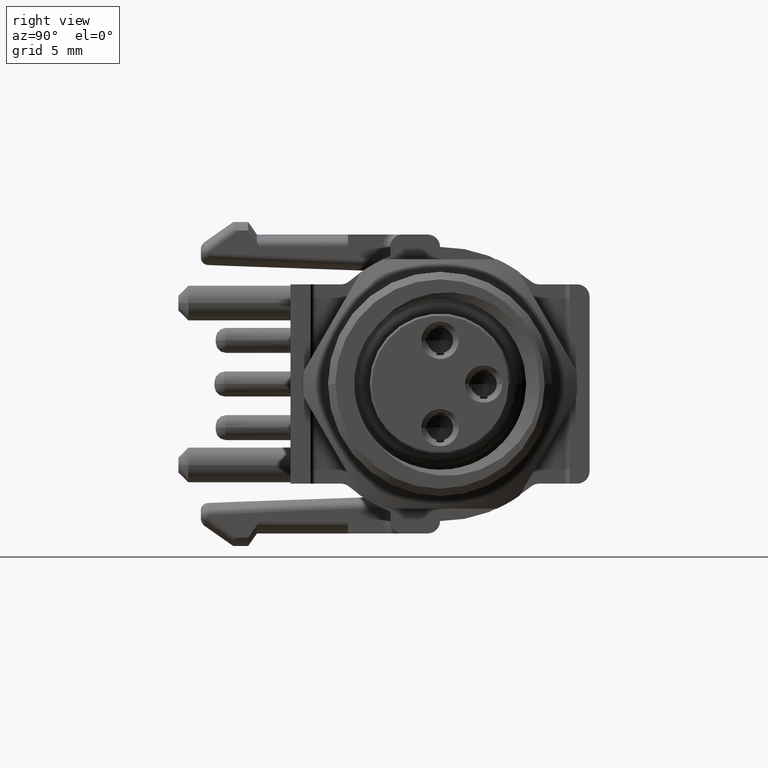
[diagram: clean part render]
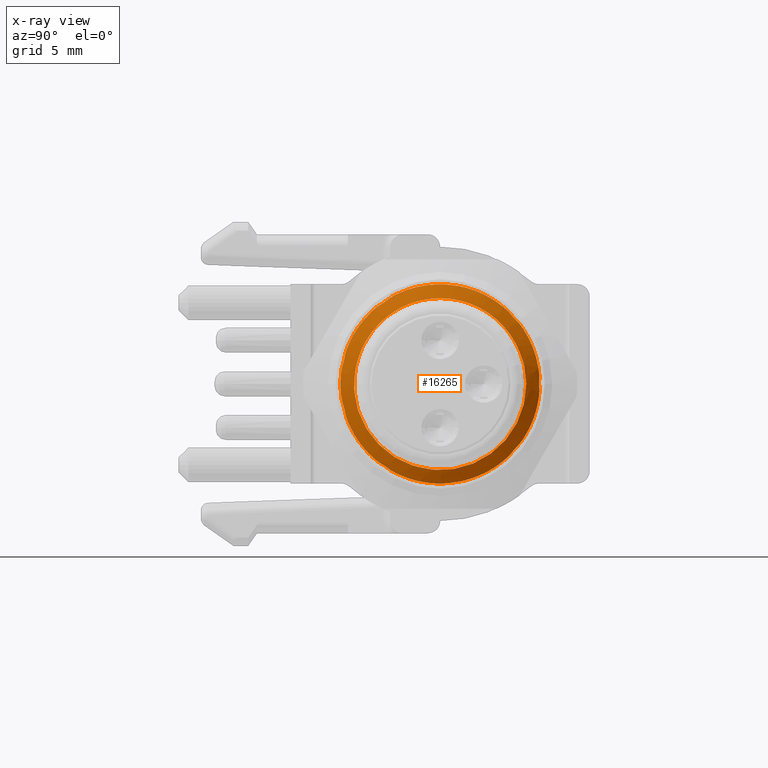
[diagram: x-ray — body ghosted, one internal face saturated and labeled with its STEP entity id]
A machine part, right view, then the same camera in x-ray: the body is ghosted and one INTERNAL B-rep face — a face not visible from any outside direction — is saturated and labeled: STEP entity #16265.
In plain terms, the highlighted face is a freeform B-spline surface patch.
Its self-contained STEP definition (entity closure, byte-faithful):
#163=CARTESIAN_POINT('',(2.155564931150E-1,1.361614173047E-1,
-2.224905239339E-6));
#164=CARTESIAN_POINT('',(2.153558405876E-1,1.361613460571E-1,
-4.362483861589E-3));
#165=CARTESIAN_POINT('',(2.149545676867E-1,1.357417860142E-1,
-1.308225783382E-2));
#166=CARTESIAN_POINT('',(2.143531247955E-1,1.338632877557E-1,
-2.603139029028E-2));
#167=CARTESIAN_POINT('',(2.137510383704E-1,1.307485409146E-1,
-3.875433858233E-2));
#168=CARTESIAN_POINT('',(2.131492549650E-1,1.264293766997E-1,
-5.111344293132E-2));
#169=CARTESIAN_POINT('',(2.125477210626E-1,1.209480192384E-1,
-6.299683349410E-2));
#170=CARTESIAN_POINT('',(2.119456832358E-1,1.143468166802E-1,
-7.430928926817E-2));
#171=CARTESIAN_POINT('',(2.113439260529E-1,1.066942442029E-1,
-8.493123632196E-2));
#172=CARTESIAN_POINT('',(2.107423706411E-1,9.806181999695E-2,
-9.476758141370E-2));
#173=CARTESIAN_POINT('',(2.101404150833E-1,8.851965301910E-2,
-1.037368475891E-1));
#174=CARTESIAN_POINT('',(2.095385776359E-1,7.816300226792E-2,
-1.117476610173E-1));
#175=CARTESIAN_POINT('',(2.089369925229E-1,6.709078921065E-2,
-1.187258772379E-1));
#176=CARTESIAN_POINT('',(2.083350852915E-1,5.539427364146E-2,
-1.246135502035E-1));
#177=CARTESIAN_POINT('',(2.077332157217E-1,4.318759989883E-2,
-1.293515518072E-1));
#178=CARTESIAN_POINT('',(2.071316839299E-1,3.059004014100E-2,
-1.328956473175E-1));
#179=CARTESIAN_POINT('',(2.065297521195E-1,1.770216414277E-2,
-1.352172274182E-1));
#180=CARTESIAN_POINT('',(2.059279061383E-1,4.652858954080E-3,
-1.362913694528E-1));
#181=CARTESIAN_POINT('',(2.053263986212E-1,-8.431954404199E-3,
-1.361098852244E-1));
#182=CARTESIAN_POINT('',(2.049250933345E-1,-1.710988013066E-2,
-1.351525115205E-1));
#183=CARTESIAN_POINT('',(2.047244094488E-1,-2.141653900397E-2,
-1.344665885060E-1));
#1234=CARTESIAN_POINT('',(1.626885929780E-1,-6.840693810092E-2,
-1.184798213744E-1));
#1236=CARTESIAN_POINT('',(1.626885929780E-1,-6.840693810092E-2,
-1.184798213744E-1));
#1237=CARTESIAN_POINT('',(1.629005271273E-1,-6.439957295489E-2,
-1.207935620293E-1));
#1238=CARTESIAN_POINT('',(1.633243959963E-1,-5.615007841631E-2,
-1.250146542217E-1));
#1239=CARTESIAN_POINT('',(1.639610543980E-1,-4.317988344563E-2,
-1.300643852766E-1));
#1240=CARTESIAN_POINT('',(1.645960077371E-1,-2.980101291790E-2,
-1.337661149104E-1));
#1241=CARTESIAN_POINT('',(1.652334237102E-1,-1.606284507625E-2,
-1.361001658870E-1));
#1242=CARTESIAN_POINT('',(1.658673284520E-1,-2.235223960672E-3,
-1.370263740488E-1));
#1243=CARTESIAN_POINT('',(1.665045478496E-1,1.168725380274E-2,
-1.365463420510E-1));
#1244=CARTESIAN_POINT('',(1.671397005382E-1,2.544460518470E-2,
-1.346617222182E-1));
#1245=CARTESIAN_POINT('',(1.677760443927E-1,3.896606118709E-2,
-1.313895280416E-1));
#1246=CARTESIAN_POINT('',(1.684123036134E-1,5.208335394936E-2,
-1.267612710332E-1));
#1247=CARTESIAN_POINT('',(1.690466398078E-1,6.462813404678E-2,
-1.208494891962E-1));
#1248=CARTESIAN_POINT('',(1.696840472013E-1,7.656614518199E-2,
-1.136617027481E-1));
#1249=CARTESIAN_POINT('',(1.703185291095E-1,8.766352245203E-2,
-1.053394791429E-1));
#1250=CARTESIAN_POINT('',(1.709557743715E-1,9.790548654307E-2,
-9.589571390794E-2));
#1251=CARTESIAN_POINT('',(1.715906159270E-1,1.071014304543E-1,
-8.550049355540E-2));
#1252=CARTESIAN_POINT('',(1.722261146189E-1,1.152091641728E-1,
-7.421830726891E-2));
#1253=CARTESIAN_POINT('',(1.728628526946E-1,1.221429435271E-1,
-6.214776416551E-2));
#1254=CARTESIAN_POINT('',(1.734976446196E-1,1.278026627751E-1,
-4.947630028872E-2));
#1255=CARTESIAN_POINT('',(1.741349053394E-1,1.321649018818E-1,
-3.624521661794E-2));
#1256=CARTESIAN_POINT('',(1.747688196454E-1,1.351493232130E-1,
-2.271158359347E-2));
#1257=CARTESIAN_POINT('',(1.754055349887E-1,1.367571399041E-1,-8.885020393E-3));
#1258=CARTESIAN_POINT('',(1.760409258934E-1,1.369533254304E-1,
5.004648603633E-3));
#1259=CARTESIAN_POINT('',(1.766770479281E-1,1.357414813787E-1,
1.885859319851E-2));
#1260=CARTESIAN_POINT('',(1.771009032567E-1,1.340022811517E-1,
2.796028533051E-2));
#1261=CARTESIAN_POINT('',(1.773128338680E-1,1.329045521902E-1,
3.245546580151E-2));
#1267=DIRECTION('',(-5.E-1,-4.330249569869E-1,-7.499929243843E-1));
#1268=VECTOR('',#1267,2.386800189889E-2);
#1269=CARTESIAN_POINT('',(1.626885929780E-1,-6.840693810092E-2,
-1.184798213744E-1));
#1270=LINE('',#1269,#1268);
#1271=CARTESIAN_POINT('',(1.860290364466E-1,0.E0,1.361614173228E-1));
#1272=CARTESIAN_POINT('',(1.862367646433E-1,-4.514016052980E-3,
1.361614173228E-1));
#1273=CARTESIAN_POINT('',(1.866522211874E-1,-1.354204288080E-2,
1.357121013257E-1));
#1274=CARTESIAN_POINT('',(1.872754054117E-1,-2.695023711734E-2,
1.336968447512E-1));
#1275=CARTESIAN_POINT('',(1.878985921778E-1,-4.009212574538E-2,
1.303602073762E-1));
#1276=CARTESIAN_POINT('',(1.885217810341E-1,-5.283781044534E-2,
1.257351499964E-1));
#1277=CARTESIAN_POINT('',(1.891449675462E-1,-6.506122947949E-2,
1.198674185339E-1));
#1278=CARTESIAN_POINT('',(1.897681526078E-1,-7.664159872661E-2,
1.128150121534E-1));
#1279=CARTESIAN_POINT('',(1.903913387672E-1,-8.746451283878E-2,
1.046476033925E-1));
#1280=CARTESIAN_POINT('',(1.910145263440E-1,-9.742300542992E-2,
9.544590231734E-2));
#1281=CARTESIAN_POINT('',(1.916377148522E-1,-1.064186375626E-1,
8.530085300250E-2));
#1282=CARTESIAN_POINT('',(1.922609008641E-1,-1.143624589549E-1,
7.431278423390E-2));
#1283=CARTESIAN_POINT('',(1.928840888557E-1,-1.211760152733E-1,
6.259021766277E-2));
#1284=CARTESIAN_POINT('',(1.935072754455E-1,-1.267919262742E-1,
5.024907359065E-2));
#1285=CARTESIAN_POINT('',(1.941304639749E-1,-1.311547183012E-1,
3.741125886515E-2));
#1286=CARTESIAN_POINT('',(1.947536521024E-1,-1.342212443850E-1,
2.420370012841E-2));
#1287=CARTESIAN_POINT('',(1.953768387039E-1,-1.359612125244E-1,
1.075695953246E-2));
#1288=CARTESIAN_POINT('',(1.960000327224E-1,-1.363574016181E-1,
-2.796257360018E-3));
#1289=CARTESIAN_POINT('',(1.966231945841E-1,-1.354059735727E-1,
-1.632114121140E-2));
#1290=CARTESIAN_POINT('',(1.972463683212E-1,-1.331163454235E-1,
-2.968498291013E-2));
#1291=CARTESIAN_POINT('',(1.978695403754E-1,-1.295111336109E-1,
-4.275541360718E-2));
#1292=CARTESIAN_POINT('',(1.984927155107E-1,-1.246259508438E-1,
-5.540335801601E-2));
#1293=CARTESIAN_POINT('',(1.991158901297E-1,-1.185090904756E-1,
-6.750373958915E-2));
#1294=CARTESIAN_POINT('',(1.997390639262E-1,-1.112210163302E-1,
-7.893696741196E-2));
#1295=CARTESIAN_POINT('',(2.003622374852E-1,-1.028337517976E-1,
-8.959005984793E-2));
#1296=CARTESIAN_POINT('',(2.009854114150E-1,-9.343017910119E-2,
-9.935774249292E-2));
#1297=CARTESIAN_POINT('',(2.016085844661E-1,-8.310325230962E-2,
-1.081434619777E-1));
#1298=CARTESIAN_POINT('',(2.022317541992E-1,-7.195508152091E-2,
-1.158603661291E-1));
#1299=CARTESIAN_POINT('',(2.028549205546E-1,-6.009585652817E-2,
-1.224322081250E-1));
#1300=CARTESIAN_POINT('',(2.034780848421E-1,-4.764276388659E-2,
-1.277940712782E-1));
#1301=CARTESIAN_POINT('',(2.041012496859E-1,-3.471881972268E-2,
-1.318929897861E-1));
#1302=CARTESIAN_POINT('',(2.045166898480E-1,-2.587418371651E-2,
-1.337566179259E-1));
#1303=CARTESIAN_POINT('',(2.047244094488E-1,-2.141653900397E-2,
-1.344665885060E-1));
#1349=CARTESIAN_POINT('',(1.784362193182E-1,1.274791908461E-1,
4.784336389280E-2));
#1350=CARTESIAN_POINT('',(1.786475327623E-1,1.258657151763E-1,
5.214248828758E-2));
#1351=CARTESIAN_POINT('',(1.790702803007E-1,1.222033295565E-1,
6.058023488103E-2));
#1352=CARTESIAN_POINT('',(1.797064626110E-1,1.154337616716E-1,
7.265423995212E-2));
#1353=CARTESIAN_POINT('',(1.803396087688E-1,1.075133614189E-1,
8.392581195314E-2));
#1354=CARTESIAN_POINT('',(1.809691482355E-1,9.855272364922E-2,
9.428562987190E-2));
#1355=CARTESIAN_POINT('',(1.816003761503E-1,8.857267095374E-2,
1.037210757151E-1));
#1356=CARTESIAN_POINT('',(1.822353964355E-1,7.762556926738E-2,
1.121514021263E-1));
#1357=CARTESIAN_POINT('',(1.828699871897E-1,6.588772713295E-2,
1.194227088843E-1));
#1358=CARTESIAN_POINT('',(1.835003327559E-1,5.356032728573E-2,
1.254342061931E-1));
#1359=CARTESIAN_POINT('',(1.841306480495E-1,4.069327221044E-2,
1.301796592532E-1));
#1360=CARTESIAN_POINT('',(1.847627119820E-1,2.737744536039E-2,
1.336179900636E-1));
#1361=CARTESIAN_POINT('',(1.853974161203E-1,1.372552370429E-2,
1.357014013218E-1));
#1362=CARTESIAN_POINT('',(1.858186139185E-1,4.572564946013E-3,
1.361614173228E-1));
#1363=CARTESIAN_POINT('',(1.860290364466E-1,0.E0,1.361614173228E-1));
#2336=DIRECTION('',(-4.999998858543E-1,-4.330033437113E-1,7.500054789671E-1));
#2337=VECTOR('',#2336,2.461692365926E-2);
#2338=CARTESIAN_POINT('',(3.074200064289E-1,-6.807871132293E-2,
1.179203995582E-1));
#2339=LINE('',#2338,#2337);
#2454=CARTESIAN_POINT('',(1.507545920286E-1,-7.874237859655E-2,
-1.363806539178E-1));
#2455=CARTESIAN_POINT('',(1.509611664828E-1,-7.424620607066E-2,
-1.389766182947E-1));
#2456=CARTESIAN_POINT('',(1.513742852692E-1,-6.499747701889E-2,
-1.437228883264E-1));
#2457=CARTESIAN_POINT('',(1.519935240617E-1,-5.049990122592E-2,
-1.494347589091E-1));
#2458=CARTESIAN_POINT('',(1.526133705293E-1,-3.549462689716E-2,
-1.536919087935E-1));
#2459=CARTESIAN_POINT('',(1.532328979996E-1,-2.015010222338E-2,
-1.564445167884E-1));
#2460=CARTESIAN_POINT('',(1.538521835426E-1,-4.614962488855E-3,
-1.576696692065E-1));
#2461=CARTESIAN_POINT('',(1.544721079059E-1,1.098130425165E-2,
-1.573545859110E-1));
#2462=CARTESIAN_POINT('',(1.550915027544E-1,2.645695889789E-2,
-1.555021907071E-1));
#2463=CARTESIAN_POINT('',(1.557108769129E-1,4.167395515087E-2,
-1.521326130362E-1));
#2464=CARTESIAN_POINT('',(1.563308078134E-1,5.649706666852E-2,
-1.472722306733E-1));
#2465=CARTESIAN_POINT('',(1.569501072444E-1,7.075326136678E-2,
-1.409783163106E-1));
#2466=CARTESIAN_POINT('',(1.575696067481E-1,8.432352316430E-2,
-1.333064624779E-1));
#2467=CARTESIAN_POINT('',(1.581894742509E-1,9.707712938967E-2,
-1.243262805732E-1));
#2468=CARTESIAN_POINT('',(1.588087149091E-1,1.088700670530E-1,
-1.141413385906E-1));
#2469=CARTESIAN_POINT('',(1.594283773030E-1,1.196079385628E-1,
-1.028349131146E-1));
#2470=CARTESIAN_POINT('',(1.600481087721E-1,1.291773599866E-1,
-9.052160714359E-2));
#2471=CARTESIAN_POINT('',(1.606673372919E-1,1.374783540047E-1,
-7.733485472254E-2));
#2472=CARTESIAN_POINT('',(1.612871628626E-1,1.444440356045E-1,
-6.337976693493E-2));
#2473=CARTESIAN_POINT('',(1.619067188982E-1,1.499946301470E-1,
-4.881114990277E-2));
#2474=CARTESIAN_POINT('',(1.625259920350E-1,1.540792177515E-1,
-3.377293238656E-2));
#2475=CARTESIAN_POINT('',(1.631459073493E-1,1.566617513815E-1,
-1.838897236190E-2));
#2476=CARTESIAN_POINT('',(1.637653241984E-1,1.577112877555E-1,
-2.837670755742E-3));
#2477=CARTESIAN_POINT('',(1.643846789512E-1,1.572219591136E-1,
1.273976068884E-2));
#2478=CARTESIAN_POINT('',(1.650046139548E-1,1.551946797104E-1,
2.820718819038E-2));
#2479=CARTESIAN_POINT('',(1.656239284708E-1,1.516534492442E-1,
4.338361581761E-2));
#2480=CARTESIAN_POINT('',(1.662434016688E-1,1.466313192616E-1,
5.814054365728E-2));
#2481=CARTESIAN_POINT('',(1.668632863802E-1,1.401717607198E-1,
7.233863379808E-2));
#2482=CARTESIAN_POINT('',(1.674825352952E-1,1.323501725306E-1,
8.581586041493E-2));
#2483=CARTESIAN_POINT('',(1.681021641798E-1,1.232315791138E-1,
9.846347317292E-2));
#2484=CARTESIAN_POINT('',(1.687219270899E-1,1.129058822933E-1,
1.101509017843E-1));
#2485=CARTESIAN_POINT('',(1.693411528336E-1,1.014871690145E-1,
1.207531544039E-1));
#2486=CARTESIAN_POINT('',(1.699609533843E-1,8.906635307375E-2,
1.301854860293E-1));
#2487=CARTESIAN_POINT('',(1.705805397256E-1,7.577906849561E-2,
1.383418054910E-1));
#2488=CARTESIAN_POINT('',(1.711998016321E-1,6.175934577689E-2,
1.451440420326E-1));
#2489=CARTESIAN_POINT('',(1.718197054680E-1,4.712139433535E-2,
1.505345025645E-1));
#2490=CARTESIAN_POINT('',(1.724391456042E-1,3.203387094537E-2,
1.544497818070E-1));
#2491=CARTESIAN_POINT('',(1.730584822490E-1,1.663632143420E-2,
1.568574954186E-1));
#2492=CARTESIAN_POINT('',(1.736784188936E-1,1.061188423921E-3,
1.577336782224E-1));
#2493=CARTESIAN_POINT('',(1.742977497902E-1,-1.450910781549E-2,
1.570681074188E-1));
#2494=CARTESIAN_POINT('',(1.749171979763E-1,-2.994076208589E-2,
1.548696683297E-1));
#2495=CARTESIAN_POINT('',(1.755370974403E-1,-4.509082076310E-2,
1.511549712886E-1));
#2496=CARTESIAN_POINT('',(1.761563558866E-1,-5.978492588773E-2,
1.459681020322E-1));
#2497=CARTESIAN_POINT('',(1.767759526349E-1,-7.390339314912E-2,
1.393533816735E-1));
#2498=CARTESIAN_POINT('',(1.773957442341E-1,-8.730353665861E-2,
1.313737403992E-1));
#2499=CARTESIAN_POINT('',(1.780149695812E-1,-9.983932122244E-2,
1.221190891754E-1));
#2500=CARTESIAN_POINT('',(1.786347423601E-1,-1.114108641092E-1,
1.116633183728E-1));
#2501=CARTESIAN_POINT('',(1.792543603800E-1,-1.218902453728E-1,
1.001184104287E-1));
#2502=CARTESIAN_POINT('',(1.798736123306E-1,-1.311741033052E-1,
8.760340998950E-2));
#2503=CARTESIAN_POINT('',(1.804935022323E-1,-1.391853675329E-1,
7.421926324702E-2));
#2504=CARTESIAN_POINT('',(1.811129669493E-1,-1.458308051087E-1,
6.011890101800E-2));
#2505=CARTESIAN_POINT('',(1.817322867815E-1,-1.510518830582E-1,
4.543527813386E-2));
#2506=CARTESIAN_POINT('',(1.823522226056E-1,-1.548011343351E-1,
3.029279039882E-2));
#2507=CARTESIAN_POINT('',(1.829715711785E-1,-1.570344719292E-1,
1.486868035323E-2));
#2508=CARTESIAN_POINT('',(1.835909956462E-1,-1.577357490162E-1,
-7.024048430384E-4));
#2509=CARTESIAN_POINT('',(1.842109074072E-1,-1.568949104326E-1,
-1.627885837433E-2));
#2510=CARTESIAN_POINT('',(1.848301766591E-1,-1.545227593376E-1,
-3.168021215218E-2));
#2511=CARTESIAN_POINT('',(1.854497426440E-1,-1.506410831322E-1,
-4.677968558173E-2));
#2512=CARTESIAN_POINT('',(1.860695601804E-1,-1.452845598879E-1,
-6.142777571155E-2));
#2513=CARTESIAN_POINT('',(1.866887875105E-1,-1.385149538963E-1,
-7.546232048046E-2));
#2514=CARTESIAN_POINT('',(1.873085297657E-1,-1.303867738208E-1,
-8.877143323289E-2));
#2515=CARTESIAN_POINT('',(1.879281808372E-1,-1.209849038588E-1,
-1.012106092843E-1));
#2516=CARTESIAN_POINT('',(1.885474241061E-1,-1.104086514579E-1,
-1.126540068630E-1));
#2517=CARTESIAN_POINT('',(1.891672976180E-1,-9.874257556753E-2,
-1.230080173728E-1));
#2518=CARTESIAN_POINT('',(1.897867882094E-1,-8.611856354801E-2,
-1.321533262698E-1));
#2519=CARTESIAN_POINT('',(1.904060925247E-1,-7.265812141334E-2,
-1.400065275857E-1));
#2520=CARTESIAN_POINT('',(1.910260250667E-1,-5.847361510628E-2,
-1.464987554141E-1));
#2521=CARTESIAN_POINT('',(1.916453926114E-1,-4.373070933175E-2,
-1.515537106304E-1));
#2522=CARTESIAN_POINT('',(1.922647946544E-1,-2.856028058586E-2,
-1.551301596731E-1));
#2523=CARTESIAN_POINT('',(1.928847162567E-1,-1.309782317052E-2,
-1.571924538043E-1));
#2524=CARTESIAN_POINT('',(1.935039975883E-1,2.476600873970E-3,
-1.577174086106E-1));
#2525=CARTESIAN_POINT('',(1.941235341830E-1,1.803326212416E-2,
-1.567031407471E-1));
#2526=CARTESIAN_POINT('',(1.947433749047E-1,3.342118260049E-2,
-1.541557892107E-1));
#2527=CARTESIAN_POINT('',(1.953626065973E-1,4.846774306869E-2,
-1.501060439855E-1));
#2528=CARTESIAN_POINT('',(1.959823155769E-1,6.305252950405E-2,
-1.445871953108E-1));
#2529=CARTESIAN_POINT('',(1.966020010731E-1,7.702021823571E-2,
-1.376547400578E-1));
#2530=CARTESIAN_POINT('',(1.972212369346E-1,9.022619121713E-2,
-1.293840114727E-1));
#2531=CARTESIAN_POINT('',(1.978410916009E-1,1.025636115820E-1,
-1.198406309741E-1));
#2532=CARTESIAN_POINT('',(1.984606093603E-1,1.138917799910E-1,
-1.091309965082E-1));
#2533=CARTESIAN_POINT('',(1.990798994543E-1,1.241045911844E-1,
-9.736054131442E-2));
#2534=CARTESIAN_POINT('',(1.996998262528E-1,1.331145214297E-1,
-8.462610430944E-2));
#2535=CARTESIAN_POINT('',(2.003192140648E-1,1.408159375521E-1,
-7.107583031039E-2));
#2536=CARTESIAN_POINT('',(2.009385949771E-1,1.471433042452E-1,
-5.683220872649E-2));
#2537=CARTESIAN_POINT('',(2.015585239636E-1,1.520372630611E-1,
-4.202019957840E-2));
#2538=CARTESIAN_POINT('',(2.021778186540E-1,1.554412386365E-1,
-2.681290920991E-2));
#2539=CARTESIAN_POINT('',(2.027973272137E-1,1.573292874651E-1,
-1.133868149667E-2));
#2540=CARTESIAN_POINT('',(2.034171884347E-1,1.576796863588E-1,
4.255241149586E-3));
#2541=CARTESIAN_POINT('',(2.040364266238E-1,1.564903097536E-1,
1.979196781426E-2));
#2542=CARTESIAN_POINT('',(2.046561004925E-1,1.537719525436E-1,
3.514633778688E-2));
#2543=CARTESIAN_POINT('',(2.052758208698E-1,1.495496816264E-1,
5.015816832501E-2));
#2544=CARTESIAN_POINT('',(2.058950508438E-1,1.438712852651E-1,
6.466864354993E-2));
#2545=CARTESIAN_POINT('',(2.065148841429E-1,1.367815431348E-1,
7.856133306912E-2));
#2546=CARTESIAN_POINT('',(2.071344303817E-1,1.283579563784E-1,
9.167961045903E-2));
#2547=CARTESIAN_POINT('',(2.077537075451E-1,1.186856618641E-1,
1.038977001247E-1));
#2548=CARTESIAN_POINT('',(2.083736261398E-1,1.078430545518E-1,
1.151126967848E-1));
#2549=CARTESIAN_POINT('',(2.089930355140E-1,9.595551206114E-2,
1.251936183314E-1));
#2550=CARTESIAN_POINT('',(2.096123965908E-1,8.313266791842E-2,
1.340522547665E-1));
#2551=CARTESIAN_POINT('',(2.102323305004E-1,6.948500047223E-2,
1.416081457822E-1));
#2552=CARTESIAN_POINT('',(2.108516398440E-1,5.517234028454E-2,
1.477732064385E-1));
#2553=CARTESIAN_POINT('',(2.114711216669E-1,4.031725816426E-2,
1.524978239117E-1));
#2554=CARTESIAN_POINT('',(2.120910009149E-1,2.505834089609E-2,
1.557339962276E-1));
#2555=CARTESIAN_POINT('',(2.127102469361E-1,9.570326453250E-3,
1.574463116189E-1));
#2556=CARTESIAN_POINT('',(2.133298868379E-1,-6.020968703049E-3,
1.576224154556E-1));
#2557=CARTESIAN_POINT('',(2.139496395735E-1,-2.155621813829E-2,
1.562571159997E-1));
#2558=CARTESIAN_POINT('',(2.145688659781E-1,-3.686791405963E-2,
1.533679538984E-1));
#2559=CARTESIAN_POINT('',(2.151886751746E-1,-5.183378801259E-2,
1.489776288978E-1));
#2560=CARTESIAN_POINT('',(2.158082512614E-1,-6.628729919480E-2,
1.431325071663E-1));
#2561=CARTESIAN_POINT('',(2.164275167698E-1,-8.008680866502E-2,
1.358937637836E-1));
#2562=CARTESIAN_POINT('',(2.170474247047E-1,-9.311772699886E-2,
1.273190873913E-1));
#2563=CARTESIAN_POINT('',(2.176668569347E-1,-1.052286504112E-1,
1.175067428046E-1));
#2564=CARTESIAN_POINT('',(2.182861994716E-1,-1.163111386935E-1,
1.065493394352E-1));
#2565=CARTESIAN_POINT('',(2.189061358427E-1,-1.262668542580E-1,
9.453951107224E-2));
#2566=CARTESIAN_POINT('',(2.195254611352E-1,-1.349792984395E-1,
8.161797739435E-2));
#2567=CARTESIAN_POINT('',(2.201449175148E-1,-1.423763689512E-1,
6.789723167423E-2));
#2568=CARTESIAN_POINT('',(2.207648123341E-1,-1.483861945876E-1,
5.350273278347E-2));
#2569=CARTESIAN_POINT('',(2.213840674618E-1,-1.529408934293E-1,
3.860063699461E-2));
#2570=CARTESIAN_POINT('',(2.220036747696E-1,-1.560050335209E-1,
2.331322475799E-2));
#2571=CARTESIAN_POINT('',(2.226234571115E-1,-1.575443616265E-1,
7.793504301972E-3));
#2572=CARTESIAN_POINT('',(2.232426823264E-1,-1.575446162373E-1,
-7.788355684019E-3));
#2573=CARTESIAN_POINT('',(2.238624646684E-1,-1.560057953233E-1,
-2.330812643762E-2));
#2574=CARTESIAN_POINT('',(2.244820719761E-1,-1.529421548322E-1,
-3.859563880341E-2));
#2575=CARTESIAN_POINT('',(2.251013271038E-1,-1.483879429994E-1,
-5.349788343374E-2));
#2576=CARTESIAN_POINT('',(2.257212219231E-1,-1.423785877844E-1,
-6.789257872035E-2));
#2577=CARTESIAN_POINT('',(2.263406783028E-1,-1.349819656761E-1,
-8.161356617241E-2));
#2578=CARTESIAN_POINT('',(2.269600035952E-1,-1.262699437803E-1,
-9.453538456963E-2));
#2579=CARTESIAN_POINT('',(2.275799399663E-1,-1.163146207071E-1,
-1.065455382830E-1));
#2580=CARTESIAN_POINT('',(2.281992825032E-1,-1.052324905231E-1,
-1.175033038268E-1));
#2581=CARTESIAN_POINT('',(2.288187147332E-1,-9.312188778867E-2,
-1.273160441982E-1));
#2582=CARTESIAN_POINT('',(2.294386226681E-1,-8.009124968571E-2,
-1.358911464416E-1));
#2583=CARTESIAN_POINT('',(2.300578881765E-1,-6.629197678793E-2,
-1.431303407940E-1));
#2584=CARTESIAN_POINT('',(2.306774642633E-1,-5.183865663440E-2,
-1.489759348690E-1));
#2585=CARTESIAN_POINT('',(2.312972734598E-1,-3.687292616703E-2,
-1.533667489581E-1));
#2586=CARTESIAN_POINT('',(2.319164998645E-1,-2.156132467286E-2,
-1.562564114503E-1));
#2587=CARTESIAN_POINT('',(2.325362526E-1,-6.026119864458E-3,
-1.576222186037E-1));
#2588=CARTESIAN_POINT('',(2.331558925018E-1,9.565181038662E-3,
-1.574466242970E-1));
#2589=CARTESIAN_POINT('',(2.337751385230E-1,2.505325143240E-2,
-1.557348150612E-1));
#2590=CARTESIAN_POINT('',(2.343950177710E-1,4.031227445185E-2,
-1.524991414146E-1));
#2591=CARTESIAN_POINT('',(2.350144995939E-1,5.516751096661E-2,
-1.477750094141E-1));
#2592=CARTESIAN_POINT('',(2.356338089375E-1,6.948037262334E-2,
-1.416104165046E-1));
#2593=CARTESIAN_POINT('',(2.362537428471E-1,8.312828699183E-2,
-1.340549715043E-1));
#2594=CARTESIAN_POINT('',(2.368731039239E-1,9.595142063155E-2,
-1.251967541297E-1));
#2595=CARTESIAN_POINT('',(2.374925132981E-1,1.078392925645E-1,
-1.151162210782E-1));
#2596=CARTESIAN_POINT('',(2.381124318928E-1,1.186822663816E-1,
-1.039015787649E-1));
#2597=CARTESIAN_POINT('',(2.387317090562E-1,1.283549601829E-1,
-9.168380520027E-2));
#2598=CARTESIAN_POINT('',(2.393512552950E-1,1.367789756454E-1,
-7.856580310362E-2));
#2599=CARTESIAN_POINT('',(2.399710885941E-1,1.438691717907E-1,
-6.467334528750E-2));
#2600=CARTESIAN_POINT('',(2.405903185681E-1,1.495480423572E-1,
-5.016305564263E-2));
#2601=CARTESIAN_POINT('',(2.412100389454E-1,1.537708038648E-1,
-3.515136309804E-2));
#2602=CARTESIAN_POINT('',(2.418297128141E-1,1.564896628605E-1,
-1.979708197065E-2));
#2603=CARTESIAN_POINT('',(2.424489510032E-1,1.576795472116E-1,
-4.260394183573E-3));
#2604=CARTESIAN_POINT('',(2.430688122242E-1,1.573296579338E-1,
1.133353990554E-2));
#2605=CARTESIAN_POINT('',(2.436883207839E-1,1.554421148103E-1,
2.680782931271E-2));
#2606=CARTESIAN_POINT('',(2.443076154743E-1,1.520386362171E-1,
4.201523091639E-2));
#2607=CARTESIAN_POINT('',(2.449275444608E-1,1.471451614663E-1,
5.682739999313E-2));
#2608=CARTESIAN_POINT('',(2.455469253731E-1,1.408182602639E-1,
7.107122835034E-2));
#2609=CARTESIAN_POINT('',(2.461663131851E-1,1.331172869741E-1,
8.462175402756E-2));
#2610=CARTESIAN_POINT('',(2.467862399836E-1,1.241077729002E-1,
9.735648547393E-2));
#2611=CARTESIAN_POINT('',(2.474055300775E-1,1.138953463756E-1,
1.091272744202E-1));
#2612=CARTESIAN_POINT('',(2.480250478370E-1,1.025675279677E-1,
1.198372790896E-1));
#2613=CARTESIAN_POINT('',(2.486449025033E-1,9.023041949105E-2,
1.293810627750E-1));
#2614=CARTESIAN_POINT('',(2.492641383648E-1,7.702471680746E-2,
1.376522229322E-1));
#2615=CARTESIAN_POINT('',(2.498838238610E-1,6.305725463871E-2,
1.445851346513E-1));
#2616=CARTESIAN_POINT('',(2.505035328406E-1,4.847264856935E-2,
1.501044599598E-1));
#2617=CARTESIAN_POINT('',(2.511227645332E-1,3.342622045651E-2,
1.541546969106E-1));
#2618=CARTESIAN_POINT('',(2.517426052549E-1,1.803838323689E-2,
1.567025513291E-1));
#2619=CARTESIAN_POINT('',(2.523621418495E-1,2.481755141685E-3,
1.577173275901E-1));
#2620=CARTESIAN_POINT('',(2.529814231812E-1,-1.309268605023E-2,
1.571928817625E-1));
#2621=CARTESIAN_POINT('',(2.536013447834E-1,-2.855521085392E-2,
1.551310929519E-1));
#2622=CARTESIAN_POINT('',(2.542207468264E-1,-4.372575647151E-2,
1.515551396868E-1));
#2623=CARTESIAN_POINT('',(2.548401143711E-1,-5.846882743617E-2,
1.465006662774E-1));
#2624=CARTESIAN_POINT('',(2.554600469132E-1,-7.265354590429E-2,
1.400089020079E-1));
#2625=CARTESIAN_POINT('',(2.560793512285E-1,-8.611424467759E-2,
1.321561405889E-1));
#2626=CARTESIAN_POINT('',(2.566988418199E-1,-9.873855556278E-2,
1.230112442547E-1));
#2627=CARTESIAN_POINT('',(2.573187153318E-1,-1.104049698202E-1,
1.126576150025E-1));
#2628=CARTESIAN_POINT('',(2.579379586006E-1,-1.209815961903E-1,
1.012145630661E-1));
#2629=CARTESIAN_POINT('',(2.585576096722E-1,-1.303838726647E-1,
8.877569427826E-2));
#2630=CARTESIAN_POINT('',(2.591773519274E-1,-1.385124876830E-1,
7.546684716517E-2));
#2631=CARTESIAN_POINT('',(2.597965792574E-1,-1.452825523256E-1,
6.143252363723E-2));
#2632=CARTESIAN_POINT('',(2.604163967939E-1,-1.506395542726E-1,
4.678460856859E-2));
#2633=CARTESIAN_POINT('',(2.610359627788E-1,-1.545217239329E-1,
3.168526200187E-2));
#2634=CARTESIAN_POINT('',(2.616552320306E-1,-1.568943783491E-1,
1.628398575509E-2));
#2635=CARTESIAN_POINT('',(2.622751437917E-1,-1.577357259771E-1,
7.075597110731E-4));
#2636=CARTESIAN_POINT('',(2.628945682594E-1,-1.570349577598E-1,
-1.486354839490E-2));
#2637=CARTESIAN_POINT('',(2.635139168322E-1,-1.548021242332E-1,
-3.028773141864E-2));
#2638=CARTESIAN_POINT('',(2.641338526563E-1,-1.510533678209E-1,
-4.543034167264E-2));
#2639=CARTESIAN_POINT('',(2.647531724886E-1,-1.458327697410E-1,
-6.011413517590E-2));
#2640=CARTESIAN_POINT('',(2.653726372055E-1,-1.391877929743E-1,
-7.421471457299E-2));
#2641=CARTESIAN_POINT('',(2.659925271073E-1,-1.311769661502E-1,
-8.759912311969E-2));
#2642=CARTESIAN_POINT('',(2.666117790579E-1,-1.218935172180E-1,
-1.001144269524E-1));
#2643=CARTESIAN_POINT('',(2.672313970778E-1,-1.114145132524E-1,
-1.116596773609E-1));
#2644=CARTESIAN_POINT('',(2.678511698567E-1,-9.984331207061E-2,
-1.221158263206E-1));
#2645=CARTESIAN_POINT('',(2.684703952037E-1,-8.730782995924E-2,
-1.313708872139E-1));
#2646=CARTESIAN_POINT('',(2.690901868030E-1,-7.390794723482E-2,
-1.393509664062E-1));
#2647=CARTESIAN_POINT('',(2.697097835512E-1,-5.978969615272E-2,
-1.459661481585E-1));
#2648=CARTESIAN_POINT('',(2.703290419975E-1,-4.509576054494E-2,
-1.511534976216E-1));
#2649=CARTESIAN_POINT('',(2.709489414616E-1,-2.994582327363E-2,
-1.548686897708E-1));
#2650=CARTESIAN_POINT('',(2.715683896476E-1,-1.451424085736E-2,
-1.570676331714E-1));
#2651=CARTESIAN_POINT('',(2.721877205442E-1,1.056033622622E-3,
-1.577337128183E-1));
#2652=CARTESIAN_POINT('',(2.728076571889E-1,1.663119525859E-2,
-1.568580390166E-1));
#2653=CARTESIAN_POINT('',(2.734269938336E-1,3.202882344660E-2,
-1.544508286044E-1));
#2654=CARTESIAN_POINT('',(2.740464339698E-1,4.711647478144E-2,
-1.505360424305E-1));
#2655=CARTESIAN_POINT('',(2.746663378057E-1,6.175460237761E-2,
-1.451460602756E-1));
#2656=CARTESIAN_POINT('',(2.752855997123E-1,7.577454738869E-2,
-1.383442819079E-1));
#2657=CARTESIAN_POINT('',(2.759051860535E-1,8.906209851158E-2,
-1.301883966845E-1));
#2658=CARTESIAN_POINT('',(2.765249866042E-1,1.014832226981E-1,
-1.207564709814E-1));
#2659=CARTESIAN_POINT('',(2.771442123479E-1,1.129022824567E-1,
-1.101545915356E-1));
#2660=CARTESIAN_POINT('',(2.777639752580E-1,1.232283612217E-1,
-9.846750037845E-2));
#2661=CARTESIAN_POINT('',(2.783836041426E-1,1.323473679627E-1,
-8.582018562655E-2));
#2662=CARTESIAN_POINT('',(2.790028530577E-1,1.401693965889E-1,
-7.234321462958E-2));
#2663=CARTESIAN_POINT('',(2.796227377690E-1,1.466294191267E-1,
-5.814533559737E-2));
#2664=CARTESIAN_POINT('',(2.802422109670E-1,1.516520313690E-1,
-4.338857189082E-2));
#2665=CARTESIAN_POINT('',(2.808615254830E-1,1.551937578052E-1,
-2.821226000055E-2));
#2666=CARTESIAN_POINT('',(2.814814604866E-1,1.572215426891E-1,
-1.274489875958E-2));
#2667=CARTESIAN_POINT('',(2.821008152394E-1,1.577113804076E-1,
2.832516685219E-3));
#2668=CARTESIAN_POINT('',(2.827202320885E-1,1.566623522569E-1,
1.838385258235E-2));
#2669=CARTESIAN_POINT('',(2.833401474028E-1,1.540803213824E-1,
3.376789699705E-2));
#2670=CARTESIAN_POINT('',(2.839594205396E-1,1.499962252351E-1,
4.880624799120E-2));
#2671=CARTESIAN_POINT('',(2.845789765752E-1,1.444461068039E-1,
6.337504641127E-2));
#2672=CARTESIAN_POINT('',(2.851988021459E-1,1.374808812657E-1,
7.733036183274E-2));
#2673=CARTESIAN_POINT('',(2.858180306657E-1,1.291803182005E-1,
9.051738552661E-2));
#2674=CARTESIAN_POINT('',(2.864377621348E-1,1.196112991857E-1,
1.028310042236E-1));
#2675=CARTESIAN_POINT('',(2.870574245287E-1,1.088737971802E-1,
1.141377806116E-1));
#2676=CARTESIAN_POINT('',(2.876766651868E-1,9.708119237122E-2,
1.243231079868E-1));
#2677=CARTESIAN_POINT('',(2.882965326897E-1,8.432787962866E-2,
1.333037066797E-1));
#2678=CARTESIAN_POINT('',(2.889160321934E-1,7.075786855769E-2,
1.409760039900E-1));
#2679=CARTESIAN_POINT('',(2.895353316244E-1,5.650187955473E-2,
1.472703842475E-1));
#2680=CARTESIAN_POINT('',(2.901552625249E-1,4.167892688426E-2,
1.521312510331E-1));
#2681=CARTESIAN_POINT('',(2.907746366833E-1,2.646204075858E-2,
1.555013259999E-1));
#2682=CARTESIAN_POINT('',(2.913940315319E-1,1.098644665763E-2,
1.573542269535E-1));
#2683=CARTESIAN_POINT('',(2.920139558952E-1,-4.609809777494E-3,
1.576698199411E-1));
#2684=CARTESIAN_POINT('',(2.926332414381E-1,-2.014498954220E-2,
1.564451752184E-1));
#2685=CARTESIAN_POINT('',(2.932527689085E-1,-3.548960416414E-2,
1.536930686902E-1));
#2686=CARTESIAN_POINT('',(2.938726153761E-1,-5.049501761028E-2,
1.494364091866E-1));
#2687=CARTESIAN_POINT('',(2.944918541685E-1,-6.499278006175E-2,
1.437250123937E-1));
#2688=CARTESIAN_POINT('',(2.949049729549E-1,-7.424166421862E-2,
1.389790446167E-1));
#2689=CARTESIAN_POINT('',(2.951115474092E-1,-7.873792157928E-2,
1.363832271779E-1));
#2809=CARTESIAN_POINT('',(2.746116112253E-1,-1.361614173047E-1,
2.224905238889E-6));
#2810=CARTESIAN_POINT('',(2.743998892140E-1,-1.361613421266E-1,
4.603028132076E-3));
#2811=CARTESIAN_POINT('',(2.739764771585E-1,-1.356942018387E-1,
1.380388980655E-2));
#2812=CARTESIAN_POINT('',(2.733418131400E-1,-1.336030788801E-1,
2.745386619243E-2));
#2813=CARTESIAN_POINT('',(2.727065286940E-1,-1.301385582271E-1,
4.083536692784E-2));
#2814=CARTESIAN_POINT('',(2.720715225146E-1,-1.253391501309E-1,
5.379166959373E-2));
#2815=CARTESIAN_POINT('',(2.714368192578E-1,-1.192574610429E-1,
6.619050628405E-2));
#2816=CARTESIAN_POINT('',(2.708014400504E-1,-1.119446106794E-1,
7.792279910407E-2));
#2817=CARTESIAN_POINT('',(2.701665937380E-1,-1.034887837028E-1,
8.884539092878E-2));
#2818=CARTESIAN_POINT('',(2.695318165180E-1,-9.397329515317E-2,
9.885628013365E-2));
#2819=CARTESIAN_POINT('',(2.688964349373E-1,-8.348347487638E-2,
1.078612591657E-1));
#2820=CARTESIAN_POINT('',(2.682616662030E-1,-7.214709126120E-2,
1.157507303004E-1));
#2821=CARTESIAN_POINT('',(2.676267976342E-1,-6.006941463782E-2,
1.224549903855E-1));
#2822=CARTESIAN_POINT('',(2.669914357583E-1,-4.736524783830E-2,
1.279064339193E-1));
#2823=CARTESIAN_POINT('',(2.663567350843E-1,-3.418841171713E-2,
1.320401318332E-1));
#2824=CARTESIAN_POINT('',(2.657217471276E-1,-2.065508023092E-2,
1.348218777216E-1));
#2825=CARTESIAN_POINT('',(2.650864521165E-1,-6.903007644775E-3,
1.362198430302E-1));
#2826=CARTESIAN_POINT('',(2.644517962220E-1,6.906034744633E-3,
1.362195783093E-1));
#2827=CARTESIAN_POINT('',(2.638166499642E-1,2.065488343387E-2,
1.348219144668E-1));
#2828=CARTESIAN_POINT('',(2.631815146904E-1,3.419134078613E-2,
1.320394576975E-1));
#2829=CARTESIAN_POINT('',(2.625468543141E-1,4.736720994175E-2,
1.279056029936E-1));
#2830=CARTESIAN_POINT('',(2.619115707033E-1,6.006981893991E-2,
1.224548471622E-1));
#2831=CARTESIAN_POINT('',(2.612765604109E-1,7.215008838877E-2,
1.157489081645E-1));
#2832=CARTESIAN_POINT('',(2.606418594150E-1,8.348506021984E-2,
1.078599782448E-1));
#2833=CARTESIAN_POINT('',(2.600064448723E-1,9.397532755670E-2,
9.885442453689E-2));
#2834=CARTESIAN_POINT('',(2.593716258156E-1,1.034911592344E-1,
8.884260108959E-2));
#2835=CARTESIAN_POINT('',(2.587368346540E-1,1.119459967285E-1,
7.792076349862E-2));
#2836=CARTESIAN_POINT('',(2.581014318034E-1,1.192589474656E-1,
6.618792488392E-2));
#2837=CARTESIAN_POINT('',(2.574666890233E-1,1.253406412314E-1,
5.378813467379E-2));
#2838=CARTESIAN_POINT('',(2.568317402989E-1,1.301393421737E-1,
4.083289919028E-2));
#2839=CARTESIAN_POINT('',(2.561963751481E-1,1.336039902897E-1,
2.744962086521E-2));
#2840=CARTESIAN_POINT('',(2.555617235706E-1,1.356946022281E-1,
1.379983420057E-2));
#2841=CARTESIAN_POINT('',(2.551382986504E-1,1.361614924844E-1,
4.598682279772E-3));
#2842=CARTESIAN_POINT('',(2.549265718552E-1,1.361614173047E-1,
-2.224905239333E-6));
#2892=CARTESIAN_POINT('',(2.942966505953E-1,1.361614173047E-1,
-2.224905239401E-6));
#2893=CARTESIAN_POINT('',(2.940849283120E-1,1.361613421265E-1,
-4.603034043621E-3));
#2894=CARTESIAN_POINT('',(2.936615177372E-1,1.356942098300E-1,
-1.380386481166E-2));
#2895=CARTESIAN_POINT('',(2.930268488925E-1,1.336030513608E-1,
-2.745394038086E-2));
#2896=CARTESIAN_POINT('',(2.923915919381E-1,1.301387067350E-1,
-4.083486927722E-2));
#2897=CARTESIAN_POINT('',(2.917565731439E-1,1.253392546045E-1,
-5.379144757287E-2));
#2898=CARTESIAN_POINT('',(2.911218792034E-1,1.192576615369E-1,
-6.619010503984E-2));
#2899=CARTESIAN_POINT('',(2.904865183675E-1,1.119451016393E-1,
-7.792210844232E-2));
#2900=CARTESIAN_POINT('',(2.898516451779E-1,1.034889586530E-1,
-8.884519406375E-2));
#2901=CARTESIAN_POINT('',(2.892168878407E-1,9.397379135277E-2,
-9.885579323877E-2));
#2902=CARTESIAN_POINT('',(2.885814971758E-1,8.348387842075E-2,
-1.078609669984E-1));
#2903=CARTESIAN_POINT('',(2.879467180633E-1,7.214731650579E-2,
-1.157505780504E-1));
#2904=CARTESIAN_POINT('',(2.873118778275E-1,6.007020604114E-2,
-1.224545851715E-1));
#2905=CARTESIAN_POINT('',(2.866765102045E-1,4.736597076372E-2,
-1.279061890909E-1));
#2906=CARTESIAN_POINT('',(2.860417906909E-1,3.418875048695E-2,
-1.320400269214E-1));
#2907=CARTESIAN_POINT('',(2.854068437212E-1,2.065631016007E-2,
-1.348216857121E-1));
#2908=CARTESIAN_POINT('',(2.847715098600E-1,6.903409179687E-3,
-1.362198488761E-1));
#2909=CARTESIAN_POINT('',(2.841368537376E-1,-6.905640111614E-3,
-1.362195831566E-1));
#2910=CARTESIAN_POINT('',(2.835017224960E-1,-2.065416984476E-2,
-1.348220258250E-1));
#2911=CARTESIAN_POINT('',(2.828665691870E-1,-3.419102587084E-2,
-1.320395534027E-1));
#2912=CARTESIAN_POINT('',(2.822319096625E-1,-4.736687660306E-2,
-1.279057060662E-1));
#2913=CARTESIAN_POINT('',(2.815966501867E-1,-6.006903912669E-2,
-1.224552383988E-1));
#2914=CARTESIAN_POINT('',(2.809616056333E-1,-7.214998469795E-2,
-1.157489846252E-1));
#2915=CARTESIAN_POINT('',(2.803269188640E-1,-8.348471307837E-2,
-1.078602421486E-1));
#2916=CARTESIAN_POINT('',(2.796914874252E-1,-9.397528441066E-2,
-9.885448092686E-2));
#2917=CARTESIAN_POINT('',(2.790566651056E-1,-1.034911634646E-1,
-8.884260166243E-2));
#2918=CARTESIAN_POINT('',(2.784218641833E-1,-1.119461217190E-1,
-7.792058976750E-2));
#2919=CARTESIAN_POINT('',(2.777864658074E-1,-1.192589995294E-1,
-6.618782005348E-2));
#2920=CARTESIAN_POINT('',(2.771517259183E-1,-1.253406642041E-1,
-5.378808591001E-2));
#2921=CARTESIAN_POINT('',(2.765167736492E-1,-1.301393806280E-1,
-4.083277400782E-2));
#2922=CARTESIAN_POINT('',(2.758814137375E-1,-1.336039913208E-1,
-2.744960359895E-2));
#2923=CARTESIAN_POINT('',(2.752467614701E-1,-1.356946060682E-1,
-1.379980253891E-2));
#2924=CARTESIAN_POINT('',(2.748233375839E-1,-1.361614924843E-1,
-4.598672791946E-3));
#2925=CARTESIAN_POINT('',(2.746116112253E-1,-1.361614173047E-1,
2.224905238889E-6));
#3020=CARTESIAN_POINT('',(3.074200064289E-1,-6.807871132293E-2,
1.179203995582E-1));
#3021=CARTESIAN_POINT('',(3.072116560812E-1,-6.415762115075E-2,
1.201841472193E-1));
#3022=CARTESIAN_POINT('',(3.067949665057E-1,-5.608991193459E-2,
1.243197571294E-1));
#3023=CARTESIAN_POINT('',(3.061702898057E-1,-4.343792857846E-2,
1.292850259725E-1));
#3024=CARTESIAN_POINT('',(3.055453011693E-1,-3.034810747881E-2,
1.329682111010E-1));
#3025=CARTESIAN_POINT('',(3.049201979181E-1,-1.695399384735E-2,
1.353294086613E-1));
#3026=CARTESIAN_POINT('',(3.042955415968E-1,-3.401063372454E-3,
1.363448084326E-1));
#3027=CARTESIAN_POINT('',(3.036704997615E-1,1.019401942015E-2,
1.360060168658E-1));
#3028=CARTESIAN_POINT('',(3.030454378505E-1,2.368814888880E-2,
1.343143917150E-1));
#3029=CARTESIAN_POINT('',(3.024207647533E-1,3.693859947017E-2,
1.312897845143E-1));
#3030=CARTESIAN_POINT('',(3.017957892387E-1,4.982848876875E-2,
1.269593441952E-1));
#3031=CARTESIAN_POINT('',(3.011706737527E-1,6.222558629007E-2,
1.213650055735E-1));
#3032=CARTESIAN_POINT('',(3.005460194127E-1,7.399550764643E-2,
1.145693615669E-1));
#3033=CARTESIAN_POINT('',(2.999209670595E-1,8.503764649518E-2,
1.066309433332E-1));
#3034=CARTESIAN_POINT('',(2.992958877993E-1,9.523434320464E-2,
9.763145911409E-2));
#3035=CARTESIAN_POINT('',(2.986712265967E-1,1.044783908993E-1,
8.766835920625E-2));
#3036=CARTESIAN_POINT('',(2.980461917404E-1,1.126897835624E-1,
7.682815552961E-2));
#3037=CARTESIAN_POINT('',(2.974211415587E-1,1.197805152589E-1,
6.522351838052E-2));
#3038=CARTESIAN_POINT('',(2.967964773989E-1,1.256772794311E-1,
5.297828710504E-2));
#3039=CARTESIAN_POINT('',(2.961714299796E-1,1.303287765904E-1,
4.019908383587E-2));
#3040=CARTESIAN_POINT('',(2.955463591880E-1,1.336840565293E-1,
2.701954033082E-2));
#3041=CARTESIAN_POINT('',(2.949216929968E-1,1.357094432682E-1,
1.358017078879E-2));
#3042=CARTESIAN_POINT('',(2.945050096565E-1,1.361614912886E-1,
4.525500084178E-3));
#3043=CARTESIAN_POINT('',(2.942966505953E-1,1.361614173047E-1,
-2.224905239401E-6));
#3194=CARTESIAN_POINT('',(2.549265718552E-1,1.361614173047E-1,
-2.224905239333E-6));
#3195=CARTESIAN_POINT('',(2.547148487899E-1,1.361613421262E-1,
-4.603051036913E-3));
#3196=CARTESIAN_POINT('',(2.542914327022E-1,1.356941846521E-1,
-1.380399846736E-2));
#3197=CARTESIAN_POINT('',(2.536567745816E-1,1.336030981961E-1,
-2.745385300746E-2));
#3198=CARTESIAN_POINT('',(2.530214548250E-1,1.301383391932E-1,
-4.083608449514E-2));
#3199=CARTESIAN_POINT('',(2.523864708507E-1,1.253390344822E-1,
-5.379191173537E-2));
#3200=CARTESIAN_POINT('',(2.517517528809E-1,1.192571941383E-1,
-6.619103035282E-2));
#3201=CARTESIAN_POINT('',(2.511163600815E-1,1.119440969097E-1,
-7.792351814517E-2));
#3202=CARTESIAN_POINT('',(2.504815403439E-1,1.034885802677E-1,
-8.884561882345E-2));
#3203=CARTESIAN_POINT('',(2.498467447061E-1,9.397279474864E-2,
-9.885677870389E-2));
#3204=CARTESIAN_POINT('',(2.492113615946E-1,8.348288013898E-2,
-1.078616983875E-1));
#3205=CARTESIAN_POINT('',(2.485766119551E-1,7.214682228507E-2,
-1.157509116872E-1));
#3206=CARTESIAN_POINT('',(2.479417030126E-1,6.006834237291E-2,
-1.224555352446E-1));
#3207=CARTESIAN_POINT('',(2.473063586209E-1,4.736446702953E-2,
-1.279066919168E-1));
#3208=CARTESIAN_POINT('',(2.466716755033E-1,3.418799097132E-2,
-1.320402645105E-1));
#3209=CARTESIAN_POINT('',(2.460366403884E-1,2.065363160802E-2,
-1.348221019923E-1));
#3210=CARTESIAN_POINT('',(2.454013934340E-1,6.902585623688E-3,
-1.362198300326E-1));
#3211=CARTESIAN_POINT('',(2.447667378937E-1,-6.906448079160E-3,
-1.362195859819E-1));
#3212=CARTESIAN_POINT('',(2.441315555707E-1,-2.065606712191E-2,
-1.348217314986E-1));
#3213=CARTESIAN_POINT('',(2.434964566564E-1,-3.419172838274E-2,
-1.320393338064E-1));
#3214=CARTESIAN_POINT('',(2.428617899799E-1,-4.736772903546E-2,
-1.279054391618E-1));
#3215=CARTESIAN_POINT('',(2.422264802148E-1,-6.007081183493E-2,
-1.224543461272E-1));
#3216=CARTESIAN_POINT('',(2.415915119641E-1,-7.215025102303E-2,
-1.157487934950E-1));
#3217=CARTESIAN_POINT('',(2.409567923982E-1,-8.348553886184E-2,
-1.078596152190E-1));
#3218=CARTESIAN_POINT('',(2.403213974376E-1,-9.397544523509E-2,
-9.885429237034E-2));
#3219=CARTESIAN_POINT('',(2.396865817553E-1,-1.034912272343E-1,
-8.884252566811E-2));
#3220=CARTESIAN_POINT('',(2.390517889503E-1,-1.119460763991E-1,
-7.792065061534E-2));
#3221=CARTESIAN_POINT('',(2.384163863115E-1,-1.192590095059E-1,
-6.618780715125E-2));
#3222=CARTESIAN_POINT('',(2.377816474692E-1,-1.253406614459E-1,
-5.378809139507E-2));
#3223=CARTESIAN_POINT('',(2.371466934186E-1,-1.301393909551E-1,
-4.083274336570E-2));
#3224=CARTESIAN_POINT('',(2.365113345234E-1,-1.336039927430E-1,
-2.744959328106E-2));
#3225=CARTESIAN_POINT('',(2.358766821360E-1,-1.356946074610E-1,
-1.379978972807E-2));
#3226=CARTESIAN_POINT('',(2.354532586360E-1,-1.361614924842E-1,
-4.598668278409E-3));
#3227=CARTESIAN_POINT('',(2.352415324851E-1,-1.361614173047E-1,
2.224905238941E-6));
#3264=CARTESIAN_POINT('',(2.352415324851E-1,-1.361614173047E-1,
2.224905238941E-6));
#3265=CARTESIAN_POINT('',(2.350298060220E-1,-1.361613421250E-1,
4.603124874220E-3));
#3266=CARTESIAN_POINT('',(2.346063818342E-1,-1.356941538698E-1,
1.380424581935E-2));
#3267=CARTESIAN_POINT('',(2.339717298420E-1,-1.336030944262E-1,
2.745397279535E-2));
#3268=CARTESIAN_POINT('',(2.333363679177E-1,-1.301380328623E-1,
4.083707176347E-2));
#3269=CARTESIAN_POINT('',(2.327014164754E-1,-1.253388939369E-1,
5.379220779734E-2));
#3270=CARTESIAN_POINT('',(2.320666758344E-1,-1.192568179855E-1,
6.619175903770E-2));
#3271=CARTESIAN_POINT('',(2.314312729944E-1,-1.119434912670E-1,
7.792436243826E-2));
#3272=CARTESIAN_POINT('',(2.307964818923E-1,-1.034883048258E-1,
8.884592939236E-2));
#3273=CARTESIAN_POINT('',(2.301616647344E-1,-9.397217162567E-2,
9.885740676352E-2));
#3274=CARTESIAN_POINT('',(2.295262688323E-1,-8.348194868092E-2,
1.078623920728E-1));
#3275=CARTESIAN_POINT('',(2.288915515529E-1,-7.214644206338E-2,
1.157511692779E-1));
#3276=CARTESIAN_POINT('',(2.282565786414E-1,-6.006669107063E-2,
1.224563689333E-1));
#3277=CARTESIAN_POINT('',(2.276212720453E-1,-4.736348775928E-2,
1.279070063430E-1));
#3278=CARTESIAN_POINT('',(2.269866062213E-1,-3.418736984290E-2,
1.320404652185E-1));
#3279=CARTESIAN_POINT('',(2.263515028882E-1,-2.065152100638E-2,
1.348224279831E-1));
#3280=CARTESIAN_POINT('',(2.257163251397E-1,-6.901954084940E-3,
1.362198104513E-1));
#3281=CARTESIAN_POINT('',(2.250816694414E-1,6.907083069027E-3,
1.362196055143E-1));
#3282=CARTESIAN_POINT('',(2.244464180343E-1,2.065817842805E-2,
1.348214050164E-1));
#3283=CARTESIAN_POINT('',(2.238113875357E-1,3.419234623117E-2,
1.320391343230E-1));
#3284=CARTESIAN_POINT('',(2.231767029683E-1,4.736871703999E-2,
1.279051210850E-1));
#3285=CARTESIAN_POINT('',(2.225413565963E-1,6.007244831458E-2,
1.224535193478E-1));
#3286=CARTESIAN_POINT('',(2.219064516074E-1,7.215063054479E-2,
1.157485367315E-1));
#3287=CARTESIAN_POINT('',(2.212716999135E-1,8.348646549393E-2,
1.078589251199E-1));
#3288=CARTESIAN_POINT('',(2.206363174558E-1,9.397606854303E-2,
9.885366422853E-2));
#3289=CARTESIAN_POINT('',(2.200015233513E-1,1.034915021592E-1,
8.884221598437E-2));
#3290=CARTESIAN_POINT('',(2.193667015330E-1,1.119466859536E-1,
7.791980031972E-2));
#3291=CARTESIAN_POINT('',(2.187313096237E-1,1.192593817283E-1,
6.618708518891E-2));
#3292=CARTESIAN_POINT('',(2.180965930725E-1,1.253408022420E-1,
5.378779495622E-2));
#3293=CARTESIAN_POINT('',(2.174616068906E-1,1.301396945274E-1,
4.083176386970E-2));
#3294=CARTESIAN_POINT('',(2.168262901791E-1,1.336039948491E-1,
2.744948194943E-2));
#3295=CARTESIAN_POINT('',(2.161916315809E-1,1.356946376571E-1,
1.379954916252E-2));
#3296=CARTESIAN_POINT('',(2.157682159911E-1,1.361614924830E-1,
4.598597114120E-3));
#3297=CARTESIAN_POINT('',(2.155564931150E-1,1.361614173047E-1,
-2.224905239339E-6));
#10939=CARTESIAN_POINT('',(1.773128338680E-1,1.329045521902E-1,
3.245546580151E-2));
#10940=CARTESIAN_POINT('',(1.774998309929E-1,1.321539500311E-1,
3.507407086792E-2));
#10941=CARTESIAN_POINT('',(1.778740590262E-1,1.304969927779E-1,
4.026347998771E-2));
#10942=CARTESIAN_POINT('',(1.782487546264E-1,1.285347752169E-1,
4.533877597136E-2));
#10943=CARTESIAN_POINT('',(1.784362193182E-1,1.274791908461E-1,
4.784336389280E-2));
#13786=CARTESIAN_POINT('',(1.507545920286E-1,-7.874237859655E-2,
-1.363806539178E-1));
#13788=VERTEX_POINT('',#13786);
#13790=VERTEX_POINT('',#2689);
#13794=CARTESIAN_POINT('',(3.074200064289E-1,-6.807871132293E-2,
1.179203995582E-1));
#13795=VERTEX_POINT('',#13794);
#13800=VERTEX_POINT('',#3194);
#13801=VERTEX_POINT('',#3227);
#13802=VERTEX_POINT('',#2892);
#13803=VERTEX_POINT('',#2925);
#13814=VERTEX_POINT('',#3297);
#13826=VERTEX_POINT('',#1271);
#13827=VERTEX_POINT('',#1303);
#13830=VERTEX_POINT('',#1349);
#13831=VERTEX_POINT('',#10939);
#13837=VERTEX_POINT('',#1234);
#15971=CARTESIAN_POINT('',(1.604220849424E-1,-1.130578250190E-1,
-7.511277650920E-2));
#15972=CARTESIAN_POINT('',(1.612040184507E-1,-1.036844234072E-1,
-8.922138024504E-2));
#15973=CARTESIAN_POINT('',(1.627678854674E-1,-7.959736694640E-2,
-1.138828405821E-1));
#15974=CARTESIAN_POINT('',(1.651136859923E-1,-3.243765528676E-2,
-1.351035661377E-1));
#15975=CARTESIAN_POINT('',(1.674594865172E-1,1.921475384481E-2,
-1.376078064447E-1));
#15976=CARTESIAN_POINT('',(1.698052870422E-1,6.820562491351E-2,
-1.210501062777E-1));
#15977=CARTESIAN_POINT('',(1.721510875671E-1,1.077481954707E-1,
-8.772374837104E-2));
#15978=CARTESIAN_POINT('',(1.744968880921E-1,1.323648640695E-1,
-4.224540057789E-2));
#15979=CARTESIAN_POINT('',(1.768426886170E-1,1.386455658624E-1,
9.085035544465E-3));
#15980=CARTESIAN_POINT('',(1.791884891419E-1,1.257202658902E-1,
5.915695729845E-2));
#15981=CARTESIAN_POINT('',(1.815342896669E-1,9.537945173164E-2,
1.010341082884E-1));
#15982=CARTESIAN_POINT('',(1.838800901918E-1,5.182611255373E-2,
1.289154176404E-1));
#15983=CARTESIAN_POINT('',(1.862258907168E-1,1.093514089304E-3,
1.389386018216E-1));
#15984=CARTESIAN_POINT('',(1.885716912417E-1,-4.979056440116E-2,
1.297151901101E-1));
#15985=CARTESIAN_POINT('',(1.909174917666E-1,-9.377735978149E-2,
1.025228639927E-1));
#15986=CARTESIAN_POINT('',(1.932632922916E-1,-1.247735613080E-1,
6.112846511502E-2));
#15987=CARTESIAN_POINT('',(1.956090928165E-1,-1.384853920401E-1,
1.126619014205E-2));
#15988=CARTESIAN_POINT('',(1.979548933415E-1,-1.330134081839E-1,
-4.015674404287E-2));
#15989=CARTESIAN_POINT('',(2.003006938664E-1,-1.091156212681E-1,
-8.601692882267E-2));
#15990=CARTESIAN_POINT('',(2.026464943913E-1,-7.010249390921E-2,
-1.199615404891E-1));
#15991=CARTESIAN_POINT('',(2.049922949163E-1,-2.137835497343E-2,
-1.372883709112E-1));
#15992=CARTESIAN_POINT('',(2.073380954412E-1,3.030723998288E-2,
-1.355972051830E-1));
#15993=CARTESIAN_POINT('',(2.096838959661E-1,7.779449702102E-2,
-1.151223135715E-1));
#15994=CARTESIAN_POINT('',(2.120296964911E-1,1.145052007718E-1,
-7.869999901534E-2));
#15995=CARTESIAN_POINT('',(2.143754970160E-1,1.353539676884E-1,
-3.137569568646E-2));
#15996=CARTESIAN_POINT('',(2.167212975410E-1,1.374527034164E-1,
2.029495435640E-2));
#15997=CARTESIAN_POINT('',(2.190670980659E-1,1.205106786848E-1,
6.915422743224E-2));
#15998=CARTESIAN_POINT('',(2.214128985908E-1,8.687480284189E-2,
1.084338484053E-1));
#15999=CARTESIAN_POINT('',(2.237586991158E-1,4.120451610875E-2,
1.326925721397E-1));
#16000=CARTESIAN_POINT('',(2.261044996407E-1,-1.017366360562E-2,
1.385699369187E-1));
#16001=CARTESIAN_POINT('',(2.284503001656E-1,-6.014252733787E-2,
1.252517754534E-1));
#16002=CARTESIAN_POINT('',(2.307961006906E-1,-1.017800928998E-1,
9.458299814512E-2));
#16003=CARTESIAN_POINT('',(2.331419012155E-1,-1.293184787417E-1,
5.081202519810E-2));
#16004=CARTESIAN_POINT('',(2.354877017404E-1,-1.389429049777E-1,
2.270355796414E-6));
#16005=CARTESIAN_POINT('',(2.378335022654E-1,-1.293201392307E-1,
-5.080779898961E-2));
#16006=CARTESIAN_POINT('',(2.401793027903E-1,-1.017831838569E-1,
-9.457967187909E-2));
#16007=CARTESIAN_POINT('',(2.425251033152E-1,-6.014662058556E-2,
-1.252498099038E-1));
#16008=CARTESIAN_POINT('',(2.448709038402E-1,-1.017819212302E-2,
-1.385696043652E-1));
#16009=CARTESIAN_POINT('',(2.472167043651E-1,4.120017963864E-2,
-1.326939186495E-1));
#16010=CARTESIAN_POINT('',(2.495625048900E-1,8.687125913251E-2,
-1.084366874519E-1));
#16011=CARTESIAN_POINT('',(2.519083054150E-1,1.205084186317E-1,
-6.915816573409E-2));
#16012=CARTESIAN_POINT('',(2.542541059399E-1,1.374520400955E-1,
-2.029944635670E-2));
#16013=CARTESIAN_POINT('',(2.565999064648E-1,1.353549929868E-1,
3.137127224614E-2));
#16014=CARTESIAN_POINT('',(2.589457069898E-1,1.145077726591E-1,
7.869625689608E-2));
#16015=CARTESIAN_POINT('',(2.612915075147E-1,7.779825922420E-2,
1.151197711538E-1));
#16016=CARTESIAN_POINT('',(2.636373080396E-1,3.031167133930E-2,
1.355962146574E-1));
#16017=CARTESIAN_POINT('',(2.659831085646E-1,-2.137386832144E-2,
1.372890694913E-1));
#16018=CARTESIAN_POINT('',(2.683289090895E-1,-7.009857347918E-2,
1.199638314034E-1));
#16019=CARTESIAN_POINT('',(2.706747096144E-1,-1.091128101412E-1,
8.602049472019E-2));
#16020=CARTESIAN_POINT('',(2.730205101394E-1,-1.330120957739E-1,
4.016109095438E-2));
#16021=CARTESIAN_POINT('',(2.753663106643E-1,-1.384857601499E-1,
-1.126166437642E-2));
#16022=CARTESIAN_POINT('',(2.777121111892E-1,-1.247755589448E-1,
-6.112438743107E-2));
#16023=CARTESIAN_POINT('',(2.800579117142E-1,-9.378071022076E-2,
-1.025197992552E-1));
#16024=CARTESIAN_POINT('',(2.824037122391E-1,-4.979480352027E-2,
-1.297135628648E-1));
#16025=CARTESIAN_POINT('',(2.847495127640E-1,1.088973518173E-3,
-1.389386374839E-1));
#16026=CARTESIAN_POINT('',(2.870953132889E-1,5.182189951732E-2,
-1.289171112702E-1));
#16027=CARTESIAN_POINT('',(2.894411138139E-1,9.537614984463E-2,
-1.010372252741E-1));
#16028=CARTESIAN_POINT('',(2.917869143388E-1,1.257183325495E-1,
-5.916106585665E-2));
#16029=CARTESIAN_POINT('',(2.941327148637E-1,1.386452688857E-1,
-9.089566533453E-3));
#16030=CARTESIAN_POINT('',(2.964785153887E-1,1.323662445957E-1,
4.224107481745E-2));
#16031=CARTESIAN_POINT('',(2.988243159136E-1,1.077510622611E-1,
8.772022706915E-2));
#16032=CARTESIAN_POINT('',(3.011701164385E-1,6.820958084398E-2,
1.210478772254E-1));
#16033=CARTESIAN_POINT('',(3.035159169634E-1,1.921925091378E-2,
1.376071784252E-1));
#16034=CARTESIAN_POINT('',(3.058617174884E-1,-3.243324002985E-2,
1.351046261413E-1));
#16035=CARTESIAN_POINT('',(3.082075180133E-1,-7.959364516632E-2,
1.138854417957E-1));
#16036=CARTESIAN_POINT('',(3.097713850299E-1,-1.036815075608E-1,
8.922476864652E-2));
#16037=CARTESIAN_POINT('',(3.105533185382E-1,-1.130553702426E-1,
7.511647124478E-2));
#16038=CARTESIAN_POINT('',(1.561551511835E-1,-1.192136346438E-1,
-7.920254165812E-2));
#16039=CARTESIAN_POINT('',(1.569370846918E-1,-1.093298669794E-1,
-9.407933528841E-2));
#16040=CARTESIAN_POINT('',(1.585009517084E-1,-8.393131054976E-2,
-1.200835709255E-1));
#16041=CARTESIAN_POINT('',(1.608467522334E-1,-3.420383140579E-2,
-1.424597295224E-1));
#16042=CARTESIAN_POINT('',(1.631925527583E-1,2.026096507906E-2,
-1.451003215290E-1));
#16043=CARTESIAN_POINT('',(1.655383532833E-1,7.191930720160E-2,
-1.276410822599E-1));
#16044=CARTESIAN_POINT('',(1.678841538082E-1,1.136149046402E-1,
-9.250015986179E-2));
#16045=CARTESIAN_POINT('',(1.702299543331E-1,1.395719097036E-1,
-4.454559203686E-2));
#16046=CARTESIAN_POINT('',(1.725757548581E-1,1.461945852126E-1,
9.579700546522E-3));
#16047=CARTESIAN_POINT('',(1.749215553830E-1,1.325655242583E-1,
6.237795475746E-2));
#16048=CARTESIAN_POINT('',(1.772673559080E-1,1.005727034758E-1,
1.065352466318E-1));
#16049=CARTESIAN_POINT('',(1.796131564329E-1,5.464795776804E-2,
1.359346466814E-1));
#16050=CARTESIAN_POINT('',(1.819589569578E-1,1.153054103937E-3,
1.465035764900E-1));
#16051=CARTESIAN_POINT('',(1.843047574828E-1,-5.250157742046E-2,
1.367779654255E-1));
#16052=CARTESIAN_POINT('',(1.866505580077E-1,-9.888338029645E-2,
1.081050625960E-1));
#16053=CARTESIAN_POINT('',(1.889963585327E-1,-1.315672731938E-1,
6.445680787977E-2));
#16054=CARTESIAN_POINT('',(1.913421590576E-1,-1.460256901934E-1,
1.187961536670E-2));
#16055=CARTESIAN_POINT('',(1.936879595825E-1,-1.402557659612E-1,
-4.234321164416E-2));
#16056=CARTESIAN_POINT('',(1.960337601075E-1,-1.150567844870E-1,
-9.070040684152E-2));
#16057=CARTESIAN_POINT('',(1.983795606324E-1,-7.391945754398E-2,
-1.264932458834E-1));
#16058=CARTESIAN_POINT('',(2.007253611573E-1,-2.254237067323E-2,
-1.447634932645E-1));
#16059=CARTESIAN_POINT('',(2.030711616823E-1,3.195741854905E-2,
-1.429802463887E-1));
#16060=CARTESIAN_POINT('',(2.054169622072E-1,8.203027736998E-2,
-1.213905311477E-1));
#16061=CARTESIAN_POINT('',(2.077627627322E-1,1.207398175874E-1,
-8.298508243459E-2));
#16062=CARTESIAN_POINT('',(2.101085632571E-1,1.427237650191E-1,
-3.308404988005E-2));
#16063=CARTESIAN_POINT('',(2.124543637820E-1,1.449367734E-1,2.139998070322E-2));
#16064=CARTESIAN_POINT('',(2.148001643070E-1,1.270722837360E-1,
7.291955954212E-2));
#16065=CARTESIAN_POINT('',(2.171459648319E-1,9.160499066738E-2,
1.143378902313E-1));
#16066=CARTESIAN_POINT('',(2.194917653568E-1,4.344803314796E-2,
1.399174609306E-1));
#16067=CARTESIAN_POINT('',(2.218375658818E-1,-1.072760258623E-2,
1.461148383993E-1));
#16068=CARTESIAN_POINT('',(2.241833664067E-1,-6.341718743838E-2,
1.320715253002E-1));
#16069=CARTESIAN_POINT('',(2.265291669316E-1,-1.073218488585E-1,
9.973288432257E-2));
#16070=CARTESIAN_POINT('',(2.288749674566E-1,-1.363596537861E-1,
5.357865505071E-2));
#16071=CARTESIAN_POINT('',(2.312207679815E-1,-1.465081139459E-1,
2.393972889202E-6));
#16072=CARTESIAN_POINT('',(2.335665685064E-1,-1.363614046859E-1,
-5.357419873219E-2));
#16073=CARTESIAN_POINT('',(2.359123690314E-1,-1.073251081131E-1,
-9.972937694689E-2));
#16074=CARTESIAN_POINT('',(2.382581695563E-1,-6.342150355660E-2,
-1.320694527297E-1));
#16075=CARTESIAN_POINT('',(2.406039700812E-1,-1.073237767386E-2,
-1.461144877388E-1));
#16076=CARTESIAN_POINT('',(2.429497706062E-1,4.344346056427E-2,
-1.399188807556E-1));
#16077=CARTESIAN_POINT('',(2.452955711311E-1,9.160125400893E-2,
-1.143408838592E-1));
#16078=CARTESIAN_POINT('',(2.476413716560E-1,1.270699006268E-1,
-7.292371227794E-2));
#16079=CARTESIAN_POINT('',(2.499871721810E-1,1.449360739624E-1,
-2.140471728544E-2));
#16080=CARTESIAN_POINT('',(2.523329727059E-1,1.427248461433E-1,
3.307938559078E-2));
#16081=CARTESIAN_POINT('',(2.546787732308E-1,1.207425295097E-1,
8.298113656317E-2));
#16082=CARTESIAN_POINT('',(2.570245737558E-1,8.203424441886E-2,
1.213878502995E-1));
#16083=CARTESIAN_POINT('',(2.593703742807E-1,3.196209118545E-2,
1.429792019308E-1));
#16084=CARTESIAN_POINT('',(2.617161748056E-1,-2.253763973051E-2,
1.447642298812E-1));
#16085=CARTESIAN_POINT('',(2.640619753306E-1,-7.391532365307E-2,
1.264956615342E-1));
#16086=CARTESIAN_POINT('',(2.664077758555E-1,-1.150538202989E-1,
9.070416689622E-2));
#16087=CARTESIAN_POINT('',(2.687535763804E-1,-1.402543820927E-1,
4.234779523775E-2));
#16088=CARTESIAN_POINT('',(2.710993769054E-1,-1.460260783461E-1,
-1.187484318068E-2));
#16089=CARTESIAN_POINT('',(2.734451774303E-1,-1.315693795985E-1,
-6.445250817273E-2));
#16090=CARTESIAN_POINT('',(2.757909779552E-1,-9.888691316155E-2,
-1.081018309888E-1));
#16091=CARTESIAN_POINT('',(2.781367784802E-1,-5.250604735254E-2,
-1.367762495793E-1));
#16092=CARTESIAN_POINT('',(2.804825790051E-1,1.148266306281E-3,
-1.465036140941E-1));
#16093=CARTESIAN_POINT('',(2.828283795300E-1,5.464351533883E-2,
-1.359364325265E-1));
#16094=CARTESIAN_POINT('',(2.851741800549E-1,1.005692218066E-1,
-1.065385333321E-1));
#16095=CARTESIAN_POINT('',(2.875199805799E-1,1.325634856504E-1,
-6.238228701979E-2));
#16096=CARTESIAN_POINT('',(2.898657811048E-1,1.461942720660E-1,
-9.584478240296E-3));
#16097=CARTESIAN_POINT('',(2.922115816297E-1,1.395733653973E-1,
4.454103074598E-2));
#16098=CARTESIAN_POINT('',(2.945573821547E-1,1.136179275226E-1,
9.249644683088E-2));
#16099=CARTESIAN_POINT('',(2.969031826796E-1,7.192347852587E-2,
1.276387318394E-1));
#16100=CARTESIAN_POINT('',(2.992489832045E-1,2.026570700593E-2,
1.450996593149E-1));
#16101=CARTESIAN_POINT('',(3.015947837294E-1,-3.419917574552E-2,
1.424608472415E-1));
#16102=CARTESIAN_POINT('',(3.039405842544E-1,-8.392738612498E-2,
1.200863137708E-1));
#16103=CARTESIAN_POINT('',(3.055044512710E-1,-1.093267923701E-1,
9.408290818269E-2));
#16104=CARTESIAN_POINT('',(3.062863847793E-1,-1.192110462088E-1,
7.920643756587E-2));
#16105=CARTESIAN_POINT('',(1.518882174246E-1,-1.253694442685E-1,
-8.329230680704E-2));
#16106=CARTESIAN_POINT('',(1.526701509329E-1,-1.149753105516E-1,
-9.893729033179E-2));
#16107=CARTESIAN_POINT('',(1.542340179495E-1,-8.826525415313E-2,
-1.262843012688E-1));
#16108=CARTESIAN_POINT('',(1.565798184744E-1,-3.597000752481E-2,
-1.498158929072E-1));
#16109=CARTESIAN_POINT('',(1.589256189994E-1,2.130717631331E-2,
-1.525928366132E-1));
#16110=CARTESIAN_POINT('',(1.612714195243E-1,7.563298948970E-2,
-1.342320582421E-1));
#16111=CARTESIAN_POINT('',(1.636172200493E-1,1.194816138098E-1,
-9.727657135252E-2));
#16112=CARTESIAN_POINT('',(1.659630205742E-1,1.467789553378E-1,
-4.684578349580E-2));
#16113=CARTESIAN_POINT('',(1.683088210991E-1,1.537436045629E-1,
1.007436554861E-2));
#16114=CARTESIAN_POINT('',(1.706546216241E-1,1.394107826264E-1,
6.559895221650E-2));
#16115=CARTESIAN_POINT('',(1.730004221490E-1,1.057659552199E-1,
1.120363849752E-1));
#16116=CARTESIAN_POINT('',(1.753462226739E-1,5.746980298230E-2,
1.429538757224E-1));
#16117=CARTESIAN_POINT('',(1.776920231989E-1,1.212594118496E-3,
1.540685511585E-1));
#16118=CARTESIAN_POINT('',(1.800378237238E-1,-5.521259043985E-2,
1.438407407408E-1));
#16119=CARTESIAN_POINT('',(1.823836242488E-1,-1.039894008115E-1,
1.136872611993E-1));
#16120=CARTESIAN_POINT('',(1.847294247737E-1,-1.383609850796E-1,
6.778515064441E-2));
#16121=CARTESIAN_POINT('',(1.870752252986E-1,-1.535659883466E-1,
1.249304059122E-2));
#16122=CARTESIAN_POINT('',(1.894210258236E-1,-1.474981237385E-1,
-4.452967924559E-2));
#16123=CARTESIAN_POINT('',(1.917668263485E-1,-1.209979477058E-1,
-9.538388486049E-2));
#16124=CARTESIAN_POINT('',(1.941126268734E-1,-7.773642117860E-2,
-1.330249512777E-1));
#16125=CARTESIAN_POINT('',(1.964584273984E-1,-2.370638637283E-2,
-1.522386156178E-1));
#16126=CARTESIAN_POINT('',(1.988042279233E-1,3.360759711543E-2,
-1.503632875945E-1));
#16127=CARTESIAN_POINT('',(2.011500284483E-1,8.626605771914E-2,
-1.276587487237E-1));
#16128=CARTESIAN_POINT('',(2.034958289732E-1,1.269744344030E-1,
-8.727016585364E-2));
#16129=CARTESIAN_POINT('',(2.058416294981E-1,1.500935623499E-1,
-3.479240407339E-2));
#16130=CARTESIAN_POINT('',(2.081874300231E-1,1.524208433836E-1,
2.250500705031E-2));
#16131=CARTESIAN_POINT('',(2.105332305480E-1,1.336338887872E-1,
7.668489165225E-2));
#16132=CARTESIAN_POINT('',(2.128790310729E-1,9.633517849262E-2,
1.202419320574E-1));
#16133=CARTESIAN_POINT('',(2.152248315979E-1,4.569155018685E-2,
1.471423497217E-1));
#16134=CARTESIAN_POINT('',(2.175706321228E-1,-1.128154156718E-2,
1.536597398799E-1));
#16135=CARTESIAN_POINT('',(2.199164326477E-1,-6.669184753922E-2,
1.388912751468E-1));
#16136=CARTESIAN_POINT('',(2.222622331727E-1,-1.128636048175E-1,
1.048827704998E-1));
#16137=CARTESIAN_POINT('',(2.246080336976E-1,-1.434008288306E-1,
5.634528490295E-2));
#16138=CARTESIAN_POINT('',(2.269538342226E-1,-1.540733229140E-1,
2.517589582235E-6));
#16139=CARTESIAN_POINT('',(2.292996347475E-1,-1.434026701410E-1,
-5.634059847516E-2));
#16140=CARTESIAN_POINT('',(2.316454352724E-1,-1.128670323690E-1,
-1.048790820150E-1));
#16141=CARTESIAN_POINT('',(2.339912357974E-1,-6.669638652724E-2,
-1.388890955558E-1));
#16142=CARTESIAN_POINT('',(2.363370363223E-1,-1.128656322426E-2,
-1.536593711125E-1));
#16143=CARTESIAN_POINT('',(2.386828368472E-1,4.568674149033E-2,
-1.471438428616E-1));
#16144=CARTESIAN_POINT('',(2.410286373722E-1,9.633124888570E-2,
-1.202450802662E-1));
#16145=CARTESIAN_POINT('',(2.433744378971E-1,1.336313826222E-1,
-7.668925882139E-2));
#16146=CARTESIAN_POINT('',(2.457202384220E-1,1.524201078294E-1,
-2.250998821373E-2));
#16147=CARTESIAN_POINT('',(2.480660389470E-1,1.500946992997E-1,
3.478749893587E-2));
#16148=CARTESIAN_POINT('',(2.504118394719E-1,1.269772863599E-1,
8.726601623065E-2));
#16149=CARTESIAN_POINT('',(2.527576399968E-1,8.627022961313E-2,
1.276559294455E-1));
#16150=CARTESIAN_POINT('',(2.551034405218E-1,3.361251103114E-2,
1.503621892042E-1));
#16151=CARTESIAN_POINT('',(2.574492410467E-1,-2.370141114003E-2,
1.522393902709E-1));
#16152=CARTESIAN_POINT('',(2.597950415716E-1,-7.773207382736E-2,
1.330274916647E-1));
#16153=CARTESIAN_POINT('',(2.621408420966E-1,-1.209948304569E-1,
9.538783907190E-2));
#16154=CARTESIAN_POINT('',(2.644866426215E-1,-1.474966684116E-1,
4.453449952071E-2));
#16155=CARTESIAN_POINT('',(2.668324431464E-1,-1.535663965423E-1,
-1.248802198536E-2));
#16156=CARTESIAN_POINT('',(2.691782436714E-1,-1.383632002521E-1,
-6.778062891475E-2));
#16157=CARTESIAN_POINT('',(2.715240441963E-1,-1.039931161021E-1,
-1.136838627226E-1));
#16158=CARTESIAN_POINT('',(2.738698447212E-1,-5.521729118446E-2,
-1.438389362940E-1));
#16159=CARTESIAN_POINT('',(2.762156452462E-1,1.207559094742E-3,
-1.540685907043E-1));
#16160=CARTESIAN_POINT('',(2.785614457711E-1,5.746513116065E-2,
-1.429557537827E-1));
#16161=CARTESIAN_POINT('',(2.809072462960E-1,1.057622937687E-1,
-1.120398413899E-1));
#16162=CARTESIAN_POINT('',(2.832530468209E-1,1.394086387515E-1,
-6.560350818269E-2));
#16163=CARTESIAN_POINT('',(2.855988473459E-1,1.537432752464E-1,
-1.007938994690E-2));
#16164=CARTESIAN_POINT('',(2.879446478708E-1,1.467804861988E-1,
4.684098667471E-2));
#16165=CARTESIAN_POINT('',(2.902904483957E-1,1.194847927840E-1,
9.727266659275E-2));
#16166=CARTESIAN_POINT('',(2.926362489207E-1,7.563737620766E-2,
1.342295864535E-1));
#16167=CARTESIAN_POINT('',(2.949820494456E-1,2.131216309798E-2,
1.525921402045E-1));
#16168=CARTESIAN_POINT('',(2.973278499705E-1,-3.596511146122E-2,
1.498170683417E-1));
#16169=CARTESIAN_POINT('',(2.996736504954E-1,-8.826112708363E-2,
1.262871857458E-1));
#16170=CARTESIAN_POINT('',(3.012375175121E-1,-1.149720771793E-1,
9.894104771890E-2));
#16171=CARTESIAN_POINT('',(3.020194510204E-1,-1.253667221751E-1,
8.329640388702E-2));
#16172=CARTESIAN_POINT('',(1.476212836656E-1,-1.315252538932E-1,
-8.738207195596E-2));
#16173=CARTESIAN_POINT('',(1.484032171740E-1,-1.206207541239E-1,
-1.037952453752E-1));
#16174=CARTESIAN_POINT('',(1.499670841906E-1,-9.259919775650E-2,
-1.324850316122E-1));
#16175=CARTESIAN_POINT('',(1.523128847155E-1,-3.773618364384E-2,
-1.571720562919E-1));
#16176=CARTESIAN_POINT('',(1.546586852405E-1,2.235338754756E-2,
-1.600853516975E-1));
#16177=CARTESIAN_POINT('',(1.570044857654E-1,7.934667177779E-2,
-1.408230342243E-1));
#16178=CARTESIAN_POINT('',(1.593502862903E-1,1.253483229793E-1,
-1.020529828433E-1));
#16179=CARTESIAN_POINT('',(1.616960868153E-1,1.539860009720E-1,
-4.914597495477E-2));
#16180=CARTESIAN_POINT('',(1.640418873402E-1,1.612926239131E-1,
1.056903055067E-2));
#16181=CARTESIAN_POINT('',(1.663876878651E-1,1.462560409945E-1,
6.881994967551E-2));
#16182=CARTESIAN_POINT('',(1.687334883901E-1,1.109592069641E-1,
1.175375233185E-1));
#16183=CARTESIAN_POINT('',(1.710792889150E-1,6.029164819661E-2,
1.499731047635E-1));
#16184=CARTESIAN_POINT('',(1.734250894400E-1,1.272134133126E-3,
1.616335258269E-1));
#16185=CARTESIAN_POINT('',(1.757708899649E-1,-5.792360345916E-2,
1.509035160562E-1));
#16186=CARTESIAN_POINT('',(1.781166904898E-1,-1.090954213265E-1,
1.192694598027E-1));
#16187=CARTESIAN_POINT('',(1.804624910148E-1,-1.451546969654E-1,
7.111349340916E-2));
#16188=CARTESIAN_POINT('',(1.828082915397E-1,-1.611062864999E-1,
1.310646581587E-2));
#16189=CARTESIAN_POINT('',(1.851540920646E-1,-1.547404815158E-1,
-4.671614684688E-2));
#16190=CARTESIAN_POINT('',(1.874998925896E-1,-1.269391109247E-1,
-1.000673628793E-1));
#16191=CARTESIAN_POINT('',(1.898456931145E-1,-8.155338481337E-2,
-1.395566566720E-1));
#16192=CARTESIAN_POINT('',(1.921914936395E-1,-2.487040207262E-2,
-1.597137379712E-1));
#16193=CARTESIAN_POINT('',(1.945372941644E-1,3.525777568162E-2,
-1.577463288003E-1));
#16194=CARTESIAN_POINT('',(1.968830946893E-1,9.050183806811E-2,
-1.339269662998E-1));
#16195=CARTESIAN_POINT('',(1.992288952143E-1,1.332090512186E-1,
-9.155524927288E-2));
#16196=CARTESIAN_POINT('',(2.015746957392E-1,1.574633596806E-1,
-3.650075826698E-2));
#16197=CARTESIAN_POINT('',(2.039204962641E-1,1.599049133672E-1,
2.361003339713E-2));
#16198=CARTESIAN_POINT('',(2.062662967891E-1,1.401954938384E-1,
8.045022376214E-2));
#16199=CARTESIAN_POINT('',(2.086120973140E-1,1.010653663181E-1,
1.261459738833E-1));
#16200=CARTESIAN_POINT('',(2.109578978389E-1,4.793506722604E-2,
1.543672385126E-1));
#16201=CARTESIAN_POINT('',(2.133036983639E-1,-1.183548054781E-2,
1.612046413605E-1));
#16202=CARTESIAN_POINT('',(2.156494988888E-1,-6.996650763974E-2,
1.457110249936E-1));
#16203=CARTESIAN_POINT('',(2.179952994138E-1,-1.184053607762E-1,
1.100326566772E-1));
#16204=CARTESIAN_POINT('',(2.203410999387E-1,-1.504420038749E-1,
5.911191475553E-2));
#16205=CARTESIAN_POINT('',(2.226869004636E-1,-1.616385318821E-1,
2.641206659462E-6));
#16206=CARTESIAN_POINT('',(2.250327009886E-1,-1.504439355962E-1,
-5.910699821776E-2));
#16207=CARTESIAN_POINT('',(2.273785015135E-1,-1.184089566252E-1,
-1.100287870828E-1));
#16208=CARTESIAN_POINT('',(2.297243020384E-1,-6.997126949826E-2,
-1.457087383817E-1));
#16209=CARTESIAN_POINT('',(2.320701025634E-1,-1.184074877508E-2,
-1.612042544861E-1));
#16210=CARTESIAN_POINT('',(2.344159030883E-1,4.793002241597E-2,
-1.543688049678E-1));
#16211=CARTESIAN_POINT('',(2.367617036132E-1,1.010612437621E-1,
-1.261492766734E-1));
#16212=CARTESIAN_POINT('',(2.391075041382E-1,1.401928646174E-1,
-8.045480536523E-2));
#16213=CARTESIAN_POINT('',(2.414533046631E-1,1.599041416962E-1,
-2.361525914246E-2));
#16214=CARTESIAN_POINT('',(2.437991051880E-1,1.574645524562E-1,
3.649561228053E-2));
#16215=CARTESIAN_POINT('',(2.461449057130E-1,1.332120432104E-1,
9.155089589775E-2));
#16216=CARTESIAN_POINT('',(2.484907062379E-1,9.050621480777E-2,
1.339240085912E-1));
#16217=CARTESIAN_POINT('',(2.508365067628E-1,3.526293087728E-2,
1.577451764775E-1));
#16218=CARTESIAN_POINT('',(2.531823072878E-1,-2.486518254912E-2,
1.597145506608E-1));
#16219=CARTESIAN_POINT('',(2.555281078127E-1,-8.154882400127E-2,
1.395593217954E-1));
#16220=CARTESIAN_POINT('',(2.578739083376E-1,-1.269358406146E-1,
1.000715112479E-1));
#16221=CARTESIAN_POINT('',(2.602197088626E-1,-1.547389547305E-1,
4.672120380407E-2));
#16222=CARTESIAN_POINT('',(2.625655093875E-1,-1.611067147385E-1,
-1.310120078963E-2));
#16223=CARTESIAN_POINT('',(2.649113099124E-1,-1.451570209059E-1,
-7.110874965642E-2));
#16224=CARTESIAN_POINT('',(2.672571104374E-1,-1.090993190428E-1,
-1.192658944561E-1));
#16225=CARTESIAN_POINT('',(2.696029109623E-1,-5.792853501672E-2,
-1.509016230086E-1));
#16226=CARTESIAN_POINT('',(2.719487114872E-1,1.266851882864E-3,
-1.616335673145E-1));
#16227=CARTESIAN_POINT('',(2.742945120122E-1,6.028674698217E-2,
-1.499750750390E-1));
#16228=CARTESIAN_POINT('',(2.766403125371E-1,1.109553657306E-1,
-1.175411494479E-1));
#16229=CARTESIAN_POINT('',(2.789861130620E-1,1.462537918524E-1,
-6.882472934582E-2));
#16230=CARTESIAN_POINT('',(2.813319135869E-1,1.612922784267E-1,
-1.057430165373E-2));
#16231=CARTESIAN_POINT('',(2.836777141119E-1,1.539876070003E-1,
4.914094260325E-2));
#16232=CARTESIAN_POINT('',(2.860235146368E-1,1.253516580454E-1,
1.020488863545E-1));
#16233=CARTESIAN_POINT('',(2.883693151617E-1,7.935127388955E-2,
1.408204410675E-1));
#16234=CARTESIAN_POINT('',(2.907151156867E-1,2.235861919012E-2,
1.600846210942E-1));
#16235=CARTESIAN_POINT('',(2.930609162116E-1,-3.773104717689E-2,
1.571732894419E-1));
#16236=CARTESIAN_POINT('',(2.954067167365E-1,-9.259486804229E-2,
1.324880577209E-1));
#16237=CARTESIAN_POINT('',(2.969705837531E-1,-1.206173619886E-1,
1.037991872551E-1));
#16238=CARTESIAN_POINT('',(2.977525172614E-1,-1.315223981413E-1,
8.738637020812E-2));
#16239=B_SPLINE_SURFACE_WITH_KNOTS('',3,3,((#15971,#15972,#15973,#15974,#15975,
#15976,#15977,#15978,#15979,#15980,#15981,#15982,#15983,#15984,#15985,#15986,
#15987,#15988,#15989,#15990,#15991,#15992,#15993,#15994,#15995,#15996,#15997,
#15998,#15999,#16000,#16001,#16002,#16003,#16004,#16005,#16006,#16007,#16008,
#16009,#16010,#16011,#16012,#16013,#16014,#16015,#16016,#16017,#16018,#16019,
#16020,#16021,#16022,#16023,#16024,#16025,#16026,#16027,#16028,#16029,#16030,
#16031,#16032,#16033,#16034,#16035,#16036,#16037),(#16038,#16039,#16040,#16041,
#16042,#16043,#16044,#16045,#16046,#16047,#16048,#16049,#16050,#16051,#16052,
#16053,#16054,#16055,#16056,#16057,#16058,#16059,#16060,#16061,#16062,#16063,
#16064,#16065,#16066,#16067,#16068,#16069,#16070,#16071,#16072,#16073,#16074,
#16075,#16076,#16077,#16078,#16079,#16080,#16081,#16082,#16083,#16084,#16085,
#16086,#16087,#16088,#16089,#16090,#16091,#16092,#16093,#16094,#16095,#16096,
#16097,#16098,#16099,#16100,#16101,#16102,#16103,#16104),(#16105,#16106,#16107,
#16108,#16109,#16110,#16111,#16112,#16113,#16114,#16115,#16116,#16117,#16118,
#16119,#16120,#16121,#16122,#16123,#16124,#16125,#16126,#16127,#16128,#16129,
#16130,#16131,#16132,#16133,#16134,#16135,#16136,#16137,#16138,#16139,#16140,
#16141,#16142,#16143,#16144,#16145,#16146,#16147,#16148,#16149,#16150,#16151,
#16152,#16153,#16154,#16155,#16156,#16157,#16158,#16159,#16160,#16161,#16162,
#16163,#16164,#16165,#16166,#16167,#16168,#16169,#16170,#16171),(#16172,#16173,
#16174,#16175,#16176,#16177,#16178,#16179,#16180,#16181,#16182,#16183,#16184,
#16185,#16186,#16187,#16188,#16189,#16190,#16191,#16192,#16193,#16194,#16195,
#16196,#16197,#16198,#16199,#16200,#16201,#16202,#16203,#16204,#16205,#16206,
#16207,#16208,#16209,#16210,#16211,#16212,#16213,#16214,#16215,#16216,#16217,
#16218,#16219,#16220,#16221,#16222,#16223,#16224,#16225,#16226,#16227,#16228,
#16229,#16230,#16231,#16232,#16233,#16234,#16235,#16236,#16237,#16238)),
.UNSPECIFIED.,.F.,.F.,.F.,(4,4),(4,1,1,1,1,1,1,1,1,1,1,1,1,1,1,1,1,1,1,1,1,1,1,
1,1,1,1,1,1,1,1,1,1,1,1,1,1,1,1,1,1,1,1,1,1,1,1,1,1,1,1,1,1,1,1,1,1,1,1,1,1,1,1,
1,4),(-2.044096648481E-2,1.020008646402E0),(-2.E-2,-3.749999999998E-3,1.25E-2,
2.875E-2,4.5E-2,6.125E-2,7.75E-2,9.375E-2,1.1E-1,1.2625E-1,1.425E-1,1.5875E-1,
1.75E-1,1.9125E-1,2.075E-1,2.2375E-1,2.4E-1,2.5625E-1,2.725E-1,2.8875E-1,
3.05E-1,3.2125E-1,3.375E-1,3.5375E-1,3.7E-1,3.8625E-1,4.025E-1,4.1875E-1,
4.35E-1,4.5125E-1,4.675E-1,4.8375E-1,5.E-1,5.1625E-1,5.325E-1,5.4875E-1,5.65E-1,
5.8125E-1,5.975E-1,6.1375E-1,6.3E-1,6.4625E-1,6.625E-1,6.7875E-1,6.95E-1,
7.1125E-1,7.275E-1,7.4375E-1,7.6E-1,7.7625E-1,7.925E-1,8.0875E-1,8.25E-1,
8.4125E-1,8.575E-1,8.7375E-1,8.9E-1,9.0625E-1,9.225E-1,9.3875E-1,9.55E-1,
9.7125E-1,9.875E-1,1.00375E0,1.02E0),.UNSPECIFIED.);
#16241=ORIENTED_EDGE('',*,*,#16240,.F.);
#16243=ORIENTED_EDGE('',*,*,#16242,.F.);
#16245=ORIENTED_EDGE('',*,*,#16244,.F.);
#16246=ORIENTED_EDGE('',*,*,#15950,.F.);
#16247=ORIENTED_EDGE('',*,*,#15803,.T.);
#16249=ORIENTED_EDGE('',*,*,#16248,.T.);
#16251=ORIENTED_EDGE('',*,*,#16250,.F.);
#16253=ORIENTED_EDGE('',*,*,#16252,.T.);
#16255=ORIENTED_EDGE('',*,*,#16254,.T.);
#16257=ORIENTED_EDGE('',*,*,#16256,.T.);
#16259=ORIENTED_EDGE('',*,*,#16258,.T.);
#16261=ORIENTED_EDGE('',*,*,#16260,.T.);
#16262=ORIENTED_EDGE('',*,*,#14401,.T.);
#16263=EDGE_LOOP('',(#16241,#16243,#16245,#16246,#16247,#16249,#16251,#16253,
#16255,#16257,#16259,#16261,#16262));
#16264=FACE_OUTER_BOUND('',#16263,.F.);
#16265=ADVANCED_FACE('',(#16264),#16239,.F.);
#184=B_SPLINE_CURVE_WITH_KNOTS('',3,(#163,#164,#165,#166,#167,#168,#169,#170,
#171,#172,#173,#174,#175,#176,#177,#178,#179,#180,#181,#182,#183),.UNSPECIFIED.,
.F.,.F.,(4,1,1,1,1,1,1,1,1,1,1,1,1,1,1,1,1,1,4),(0.E0,5.555555555556E-2,
1.111111111111E-1,1.666666666667E-1,2.222222222222E-1,2.777777777778E-1,
3.333333333333E-1,3.888888888889E-1,4.444444444444E-1,5.E-1,5.555555555556E-1,
6.111111111111E-1,6.666666666667E-1,7.222222222222E-1,7.777777777778E-1,
8.333333333333E-1,8.888888888889E-1,9.444444444444E-1,1.E0),.UNSPECIFIED.);
#1262=B_SPLINE_CURVE_WITH_KNOTS('',3,(#1236,#1237,#1238,#1239,#1240,#1241,#1242,
#1243,#1244,#1245,#1246,#1247,#1248,#1249,#1250,#1251,#1252,#1253,#1254,#1255,
#1256,#1257,#1258,#1259,#1260,#1261),.UNSPECIFIED.,.F.,.F.,(4,1,1,1,1,1,1,1,1,1,
1,1,1,1,1,1,1,1,1,1,1,1,1,4),(0.E0,4.347826086957E-2,8.695652173913E-2,
1.304347826087E-1,1.739130434783E-1,2.173913043478E-1,2.608695652174E-1,
3.043478260870E-1,3.478260869565E-1,3.913043478261E-1,4.347826086957E-1,
4.782608695652E-1,5.217391304348E-1,5.652173913043E-1,6.086956521739E-1,
6.521739130435E-1,6.956521739130E-1,7.391304347826E-1,7.826086956522E-1,
8.260869565217E-1,8.695652173913E-1,9.130434782609E-1,9.565217391304E-1,1.E0),
.UNSPECIFIED.);
#1304=B_SPLINE_CURVE_WITH_KNOTS('',3,(#1271,#1272,#1273,#1274,#1275,#1276,#1277,
#1278,#1279,#1280,#1281,#1282,#1283,#1284,#1285,#1286,#1287,#1288,#1289,#1290,
#1291,#1292,#1293,#1294,#1295,#1296,#1297,#1298,#1299,#1300,#1301,#1302,#1303),
.UNSPECIFIED.,.F.,.F.,(4,1,1,1,1,1,1,1,1,1,1,1,1,1,1,1,1,1,1,1,1,1,1,1,1,1,1,1,
1,1,4),(0.E0,3.333333333333E-2,6.666666666667E-2,1.E-1,1.333333333333E-1,
1.666666666667E-1,2.E-1,2.333333333333E-1,2.666666666667E-1,3.E-1,
3.333333333333E-1,3.666666666667E-1,4.E-1,4.333333333333E-1,4.666666666667E-1,
5.E-1,5.333333333333E-1,5.666666666667E-1,6.E-1,6.333333333333E-1,
6.666666666667E-1,7.E-1,7.333333333333E-1,7.666666666667E-1,8.E-1,
8.333333333333E-1,8.666666666667E-1,9.E-1,9.333333333333E-1,9.666666666667E-1,
1.E0),.UNSPECIFIED.);
#1364=B_SPLINE_CURVE_WITH_KNOTS('',3,(#1349,#1350,#1351,#1352,#1353,#1354,#1355,
#1356,#1357,#1358,#1359,#1360,#1361,#1362,#1363),.UNSPECIFIED.,.F.,.F.,(4,1,1,1,
1,1,1,1,1,1,1,1,4),(0.E0,8.333333333333E-2,1.666666666667E-1,2.5E-1,
3.333333333333E-1,4.166666666667E-1,5.E-1,5.833333333333E-1,6.666666666667E-1,
7.5E-1,8.333333333333E-1,9.166666666667E-1,1.E0),.UNSPECIFIED.);
#2690=B_SPLINE_CURVE_WITH_KNOTS('',3,(#2454,#2455,#2456,#2457,#2458,#2459,#2460,
#2461,#2462,#2463,#2464,#2465,#2466,#2467,#2468,#2469,#2470,#2471,#2472,#2473,
#2474,#2475,#2476,#2477,#2478,#2479,#2480,#2481,#2482,#2483,#2484,#2485,#2486,
#2487,#2488,#2489,#2490,#2491,#2492,#2493,#2494,#2495,#2496,#2497,#2498,#2499,
#2500,#2501,#2502,#2503,#2504,#2505,#2506,#2507,#2508,#2509,#2510,#2511,#2512,
#2513,#2514,#2515,#2516,#2517,#2518,#2519,#2520,#2521,#2522,#2523,#2524,#2525,
#2526,#2527,#2528,#2529,#2530,#2531,#2532,#2533,#2534,#2535,#2536,#2537,#2538,
#2539,#2540,#2541,#2542,#2543,#2544,#2545,#2546,#2547,#2548,#2549,#2550,#2551,
#2552,#2553,#2554,#2555,#2556,#2557,#2558,#2559,#2560,#2561,#2562,#2563,#2564,
#2565,#2566,#2567,#2568,#2569,#2570,#2571,#2572,#2573,#2574,#2575,#2576,#2577,
#2578,#2579,#2580,#2581,#2582,#2583,#2584,#2585,#2586,#2587,#2588,#2589,#2590,
#2591,#2592,#2593,#2594,#2595,#2596,#2597,#2598,#2599,#2600,#2601,#2602,#2603,
#2604,#2605,#2606,#2607,#2608,#2609,#2610,#2611,#2612,#2613,#2614,#2615,#2616,
#2617,#2618,#2619,#2620,#2621,#2622,#2623,#2624,#2625,#2626,#2627,#2628,#2629,
#2630,#2631,#2632,#2633,#2634,#2635,#2636,#2637,#2638,#2639,#2640,#2641,#2642,
#2643,#2644,#2645,#2646,#2647,#2648,#2649,#2650,#2651,#2652,#2653,#2654,#2655,
#2656,#2657,#2658,#2659,#2660,#2661,#2662,#2663,#2664,#2665,#2666,#2667,#2668,
#2669,#2670,#2671,#2672,#2673,#2674,#2675,#2676,#2677,#2678,#2679,#2680,#2681,
#2682,#2683,#2684,#2685,#2686,#2687,#2688,#2689),.UNSPECIFIED.,.F.,.F.,(4,1,1,1,
1,1,1,1,1,1,1,1,1,1,1,1,1,1,1,1,1,1,1,1,1,1,1,1,1,1,1,1,1,1,1,1,1,1,1,1,1,1,1,1,
1,1,1,1,1,1,1,1,1,1,1,1,1,1,1,1,1,1,1,1,1,1,1,1,1,1,1,1,1,1,1,1,1,1,1,1,1,1,1,1,
1,1,1,1,1,1,1,1,1,1,1,1,1,1,1,1,1,1,1,1,1,1,1,1,1,1,1,1,1,1,1,1,1,1,1,1,1,1,1,1,
1,1,1,1,1,1,1,1,1,1,1,1,1,1,1,1,1,1,1,1,1,1,1,1,1,1,1,1,1,1,1,1,1,1,1,1,1,1,1,1,
1,1,1,1,1,1,1,1,1,1,1,1,1,1,1,1,1,1,1,1,1,1,1,1,1,1,1,1,1,1,1,1,1,1,1,1,1,1,1,1,
1,1,1,1,1,1,1,1,1,1,1,1,1,1,1,1,1,1,1,1,1,1,1,1,1,1,1,1,1,4),(0.E0,
4.291845493562E-3,8.583690987124E-3,1.287553648069E-2,1.716738197425E-2,
2.145922746781E-2,2.575107296137E-2,3.004291845494E-2,3.433476394850E-2,
3.862660944206E-2,4.291845493562E-2,4.721030042918E-2,5.150214592275E-2,
5.579399141631E-2,6.008583690987E-2,6.437768240343E-2,6.866952789700E-2,
7.296137339056E-2,7.725321888412E-2,8.154506437768E-2,8.583690987124E-2,
9.012875536481E-2,9.442060085837E-2,9.871244635193E-2,1.030042918455E-1,
1.072961373391E-1,1.115879828326E-1,1.158798283262E-1,1.201716738197E-1,
1.244635193133E-1,1.287553648069E-1,1.330472103004E-1,1.373390557940E-1,
1.416309012876E-1,1.459227467811E-1,1.502145922747E-1,1.545064377682E-1,
1.587982832618E-1,1.630901287554E-1,1.673819742489E-1,1.716738197425E-1,
1.759656652361E-1,1.802575107296E-1,1.845493562232E-1,1.888412017167E-1,
1.931330472103E-1,1.974248927039E-1,2.017167381974E-1,2.060085836910E-1,
2.103004291845E-1,2.145922746781E-1,2.188841201717E-1,2.231759656652E-1,
2.274678111588E-1,2.317596566524E-1,2.360515021459E-1,2.403433476395E-1,
2.446351931330E-1,2.489270386266E-1,2.532188841202E-1,2.575107296137E-1,
2.618025751073E-1,2.660944206009E-1,2.703862660944E-1,2.746781115880E-1,
2.789699570815E-1,2.832618025751E-1,2.875536480687E-1,2.918454935622E-1,
2.961373390558E-1,3.004291845494E-1,3.047210300429E-1,3.090128755365E-1,
3.133047210300E-1,3.175965665236E-1,3.218884120172E-1,3.261802575107E-1,
3.304721030043E-1,3.347639484979E-1,3.390557939914E-1,3.433476394850E-1,
3.476394849785E-1,3.519313304721E-1,3.562231759657E-1,3.605150214592E-1,
3.648068669528E-1,3.690987124464E-1,3.733905579399E-1,3.776824034335E-1,
3.819742489270E-1,3.862660944206E-1,3.905579399142E-1,3.948497854077E-1,
3.991416309013E-1,4.034334763948E-1,4.077253218884E-1,4.120171673820E-1,
4.163090128755E-1,4.206008583691E-1,4.248927038627E-1,4.291845493562E-1,
4.334763948498E-1,4.377682403433E-1,4.420600858369E-1,4.463519313305E-1,
4.506437768240E-1,4.549356223176E-1,4.592274678112E-1,4.635193133047E-1,
4.678111587983E-1,4.721030042918E-1,4.763948497854E-1,4.806866952790E-1,
4.849785407725E-1,4.892703862661E-1,4.935622317597E-1,4.978540772532E-1,
5.021459227468E-1,5.064377682403E-1,5.107296137339E-1,5.150214592275E-1,
5.193133047210E-1,5.236051502146E-1,5.278969957082E-1,5.321888412017E-1,
5.364806866953E-1,5.407725321888E-1,5.450643776824E-1,5.493562231760E-1,
5.536480686695E-1,5.579399141631E-1,5.622317596567E-1,5.665236051502E-1,
5.708154506438E-1,5.751072961373E-1,5.793991416309E-1,5.836909871245E-1,
5.879828326180E-1,5.922746781116E-1,5.965665236052E-1,6.008583690987E-1,
6.051502145923E-1,6.094420600858E-1,6.137339055794E-1,6.180257510730E-1,
6.223175965665E-1,6.266094420601E-1,6.309012875536E-1,6.351931330472E-1,
6.394849785408E-1,6.437768240343E-1,6.480686695279E-1,6.523605150215E-1,
6.566523605150E-1,6.609442060086E-1,6.652360515021E-1,6.695278969957E-1,
6.738197424893E-1,6.781115879828E-1,6.824034334764E-1,6.866952789700E-1,
6.909871244635E-1,6.952789699571E-1,6.995708154506E-1,7.038626609442E-1,
7.081545064378E-1,7.124463519313E-1,7.167381974249E-1,7.210300429185E-1,
7.253218884120E-1,7.296137339056E-1,7.339055793991E-1,7.381974248927E-1,
7.424892703863E-1,7.467811158798E-1,7.510729613734E-1,7.553648068670E-1,
7.596566523605E-1,7.639484978541E-1,7.682403433476E-1,7.725321888412E-1,
7.768240343348E-1,7.811158798283E-1,7.854077253219E-1,7.896995708155E-1,
7.939914163090E-1,7.982832618026E-1,8.025751072961E-1,8.068669527897E-1,
8.111587982833E-1,8.154506437768E-1,8.197424892704E-1,8.240343347639E-1,
8.283261802575E-1,8.326180257511E-1,8.369098712446E-1,8.412017167382E-1,
8.454935622318E-1,8.497854077253E-1,8.540772532189E-1,8.583690987124E-1,
8.626609442060E-1,8.669527896996E-1,8.712446351931E-1,8.755364806867E-1,
8.798283261803E-1,8.841201716738E-1,8.884120171674E-1,8.927038626609E-1,
8.969957081545E-1,9.012875536481E-1,9.055793991416E-1,9.098712446352E-1,
9.141630901288E-1,9.184549356223E-1,9.227467811159E-1,9.270386266094E-1,
9.313304721030E-1,9.356223175966E-1,9.399141630901E-1,9.442060085837E-1,
9.484978540773E-1,9.527896995708E-1,9.570815450644E-1,9.613733905579E-1,
9.656652360515E-1,9.699570815451E-1,9.742489270386E-1,9.785407725322E-1,
9.828326180258E-1,9.871244635193E-1,9.914163090129E-1,9.957081545064E-1,1.E0),
.UNSPECIFIED.);
#2843=B_SPLINE_CURVE_WITH_KNOTS('',3,(#2809,#2810,#2811,#2812,#2813,#2814,#2815,
#2816,#2817,#2818,#2819,#2820,#2821,#2822,#2823,#2824,#2825,#2826,#2827,#2828,
#2829,#2830,#2831,#2832,#2833,#2834,#2835,#2836,#2837,#2838,#2839,#2840,#2841,
#2842),.UNSPECIFIED.,.F.,.F.,(4,1,1,1,1,1,1,1,1,1,1,1,1,1,1,1,1,1,1,1,1,1,1,1,1,
1,1,1,1,1,1,4),(0.E0,3.225806451613E-2,6.451612903226E-2,9.677419354839E-2,
1.290322580645E-1,1.612903225806E-1,1.935483870968E-1,2.258064516129E-1,
2.580645161290E-1,2.903225806452E-1,3.225806451613E-1,3.548387096774E-1,
3.870967741935E-1,4.193548387097E-1,4.516129032258E-1,4.838709677419E-1,
5.161290322581E-1,5.483870967742E-1,5.806451612903E-1,6.129032258065E-1,
6.451612903226E-1,6.774193548387E-1,7.096774193548E-1,7.419354838710E-1,
7.741935483871E-1,8.064516129032E-1,8.387096774194E-1,8.709677419355E-1,
9.032258064516E-1,9.354838709677E-1,9.677419354839E-1,1.E0),.UNSPECIFIED.);
#2926=B_SPLINE_CURVE_WITH_KNOTS('',3,(#2892,#2893,#2894,#2895,#2896,#2897,#2898,
#2899,#2900,#2901,#2902,#2903,#2904,#2905,#2906,#2907,#2908,#2909,#2910,#2911,
#2912,#2913,#2914,#2915,#2916,#2917,#2918,#2919,#2920,#2921,#2922,#2923,#2924,
#2925),.UNSPECIFIED.,.F.,.F.,(4,1,1,1,1,1,1,1,1,1,1,1,1,1,1,1,1,1,1,1,1,1,1,1,1,
1,1,1,1,1,1,4),(0.E0,3.225806451613E-2,6.451612903226E-2,9.677419354839E-2,
1.290322580645E-1,1.612903225806E-1,1.935483870968E-1,2.258064516129E-1,
2.580645161290E-1,2.903225806452E-1,3.225806451613E-1,3.548387096774E-1,
3.870967741935E-1,4.193548387097E-1,4.516129032258E-1,4.838709677419E-1,
5.161290322581E-1,5.483870967742E-1,5.806451612903E-1,6.129032258065E-1,
6.451612903226E-1,6.774193548387E-1,7.096774193548E-1,7.419354838710E-1,
7.741935483871E-1,8.064516129032E-1,8.387096774194E-1,8.709677419355E-1,
9.032258064516E-1,9.354838709677E-1,9.677419354839E-1,1.E0),.UNSPECIFIED.);
#3044=B_SPLINE_CURVE_WITH_KNOTS('',3,(#3020,#3021,#3022,#3023,#3024,#3025,#3026,
#3027,#3028,#3029,#3030,#3031,#3032,#3033,#3034,#3035,#3036,#3037,#3038,#3039,
#3040,#3041,#3042,#3043),.UNSPECIFIED.,.F.,.F.,(4,1,1,1,1,1,1,1,1,1,1,1,1,1,1,1,
1,1,1,1,1,4),(0.E0,4.761904761905E-2,9.523809523810E-2,1.428571428571E-1,
1.904761904762E-1,2.380952380952E-1,2.857142857143E-1,3.333333333333E-1,
3.809523809524E-1,4.285714285714E-1,4.761904761905E-1,5.238095238095E-1,
5.714285714286E-1,6.190476190476E-1,6.666666666667E-1,7.142857142857E-1,
7.619047619048E-1,8.095238095238E-1,8.571428571429E-1,9.047619047619E-1,
9.523809523810E-1,1.E0),.UNSPECIFIED.);
#3228=B_SPLINE_CURVE_WITH_KNOTS('',3,(#3194,#3195,#3196,#3197,#3198,#3199,#3200,
#3201,#3202,#3203,#3204,#3205,#3206,#3207,#3208,#3209,#3210,#3211,#3212,#3213,
#3214,#3215,#3216,#3217,#3218,#3219,#3220,#3221,#3222,#3223,#3224,#3225,#3226,
#3227),.UNSPECIFIED.,.F.,.F.,(4,1,1,1,1,1,1,1,1,1,1,1,1,1,1,1,1,1,1,1,1,1,1,1,1,
1,1,1,1,1,1,4),(0.E0,3.225806451613E-2,6.451612903226E-2,9.677419354839E-2,
1.290322580645E-1,1.612903225806E-1,1.935483870968E-1,2.258064516129E-1,
2.580645161290E-1,2.903225806452E-1,3.225806451613E-1,3.548387096774E-1,
3.870967741935E-1,4.193548387097E-1,4.516129032258E-1,4.838709677419E-1,
5.161290322581E-1,5.483870967742E-1,5.806451612903E-1,6.129032258065E-1,
6.451612903226E-1,6.774193548387E-1,7.096774193548E-1,7.419354838710E-1,
7.741935483871E-1,8.064516129032E-1,8.387096774194E-1,8.709677419355E-1,
9.032258064516E-1,9.354838709677E-1,9.677419354839E-1,1.E0),.UNSPECIFIED.);
#3298=B_SPLINE_CURVE_WITH_KNOTS('',3,(#3264,#3265,#3266,#3267,#3268,#3269,#3270,
#3271,#3272,#3273,#3274,#3275,#3276,#3277,#3278,#3279,#3280,#3281,#3282,#3283,
#3284,#3285,#3286,#3287,#3288,#3289,#3290,#3291,#3292,#3293,#3294,#3295,#3296,
#3297),.UNSPECIFIED.,.F.,.F.,(4,1,1,1,1,1,1,1,1,1,1,1,1,1,1,1,1,1,1,1,1,1,1,1,1,
1,1,1,1,1,1,4),(0.E0,3.225806451613E-2,6.451612903226E-2,9.677419354839E-2,
1.290322580645E-1,1.612903225806E-1,1.935483870968E-1,2.258064516129E-1,
2.580645161290E-1,2.903225806452E-1,3.225806451613E-1,3.548387096774E-1,
3.870967741935E-1,4.193548387097E-1,4.516129032258E-1,4.838709677419E-1,
5.161290322581E-1,5.483870967742E-1,5.806451612903E-1,6.129032258065E-1,
6.451612903226E-1,6.774193548387E-1,7.096774193548E-1,7.419354838710E-1,
7.741935483871E-1,8.064516129032E-1,8.387096774194E-1,8.709677419355E-1,
9.032258064516E-1,9.354838709677E-1,9.677419354839E-1,1.E0),.UNSPECIFIED.);
#10944=B_SPLINE_CURVE_WITH_KNOTS('',3,(#10939,#10940,#10941,#10942,#10943),
.UNSPECIFIED.,.F.,.F.,(4,1,4),(0.E0,5.E-1,1.E0),.UNSPECIFIED.);
#14401=EDGE_CURVE('',#13814,#13827,#184,.T.);
#15803=EDGE_CURVE('',#13837,#13788,#1270,.T.);
#15950=EDGE_CURVE('',#13837,#13831,#1262,.T.);
#16240=EDGE_CURVE('',#13826,#13827,#1304,.T.);
#16242=EDGE_CURVE('',#13830,#13826,#1364,.T.);
#16244=EDGE_CURVE('',#13831,#13830,#10944,.T.);
#16248=EDGE_CURVE('',#13788,#13790,#2690,.T.);
#16250=EDGE_CURVE('',#13795,#13790,#2339,.T.);
#16252=EDGE_CURVE('',#13795,#13802,#3044,.T.);
#16254=EDGE_CURVE('',#13802,#13803,#2926,.T.);
#16256=EDGE_CURVE('',#13803,#13800,#2843,.T.);
#16258=EDGE_CURVE('',#13800,#13801,#3228,.T.);
#16260=EDGE_CURVE('',#13801,#13814,#3298,.T.);